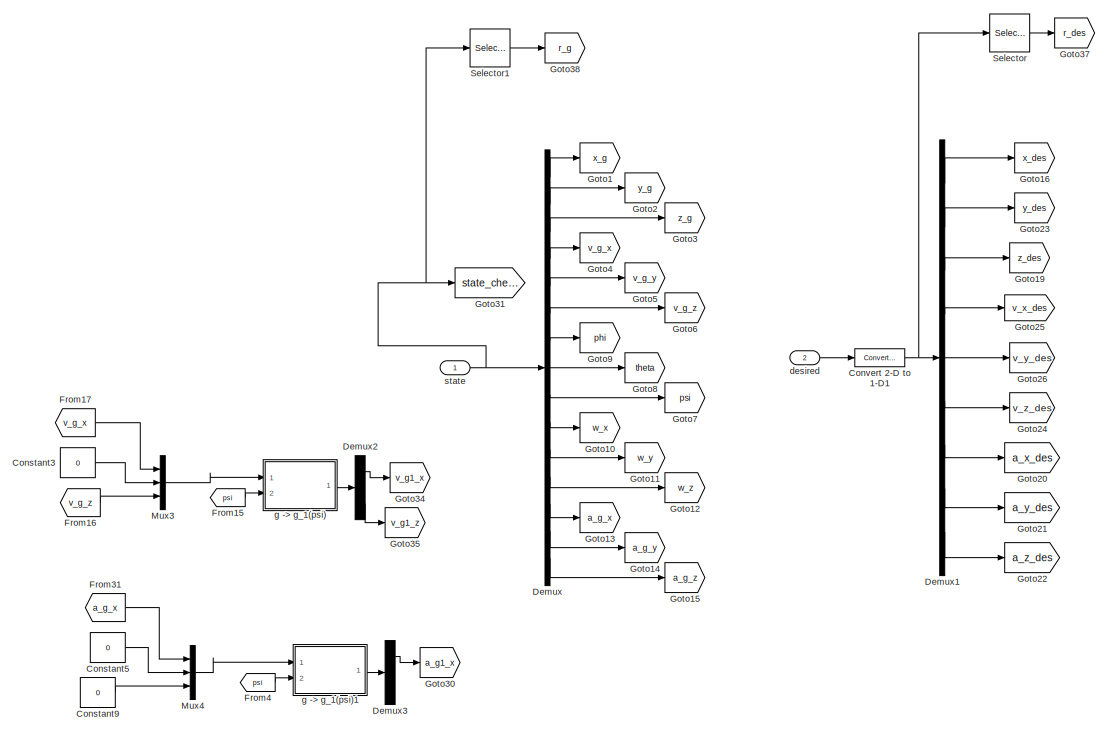
[diagram: root canvas - part 1/8, top left region]
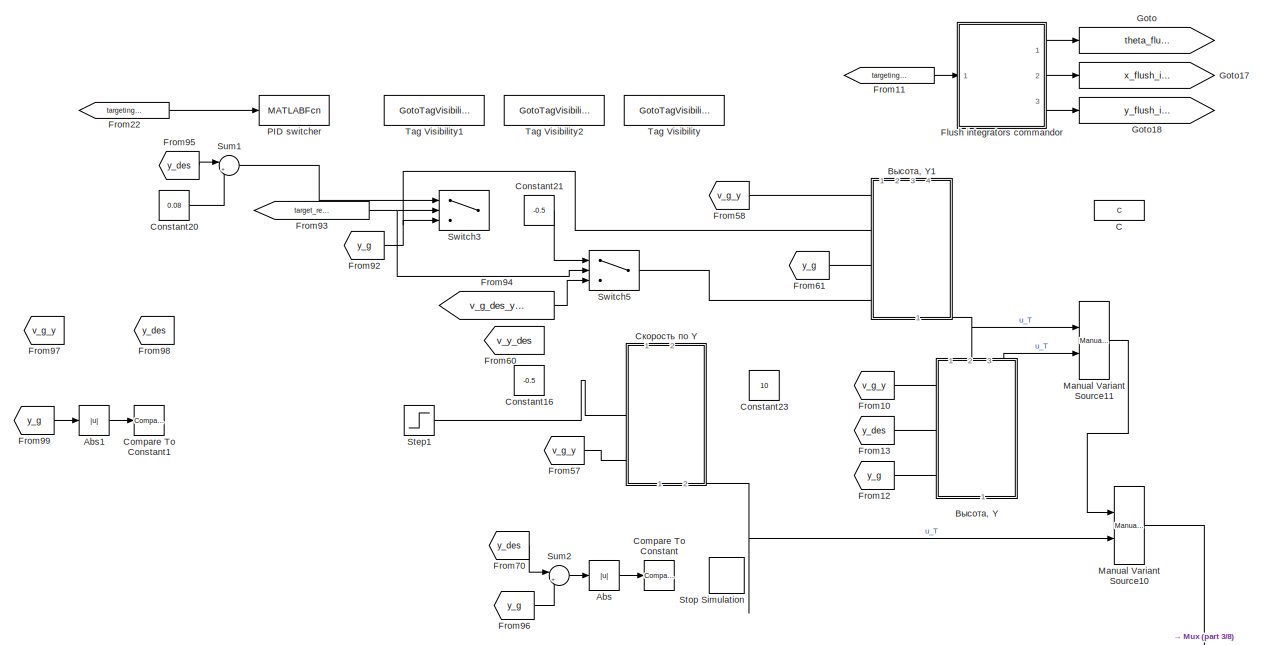
[diagram: root canvas - part 2/8, top center region]
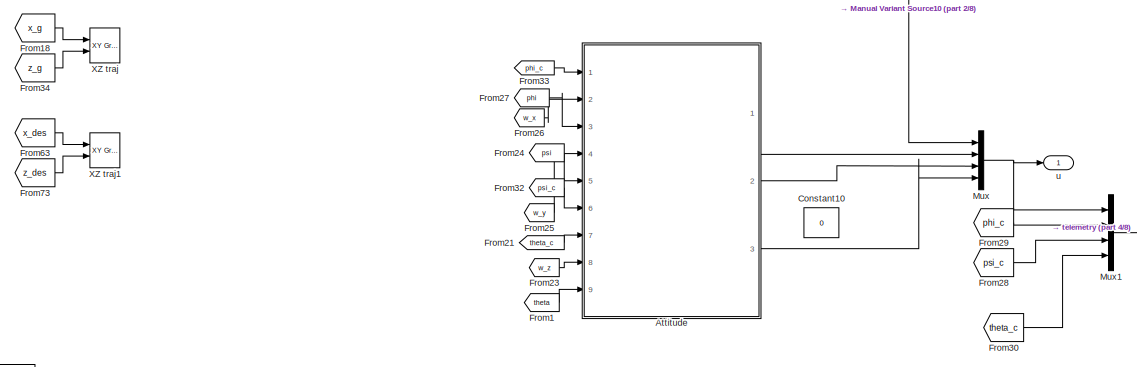
[diagram: root canvas - part 3/8, top center region]
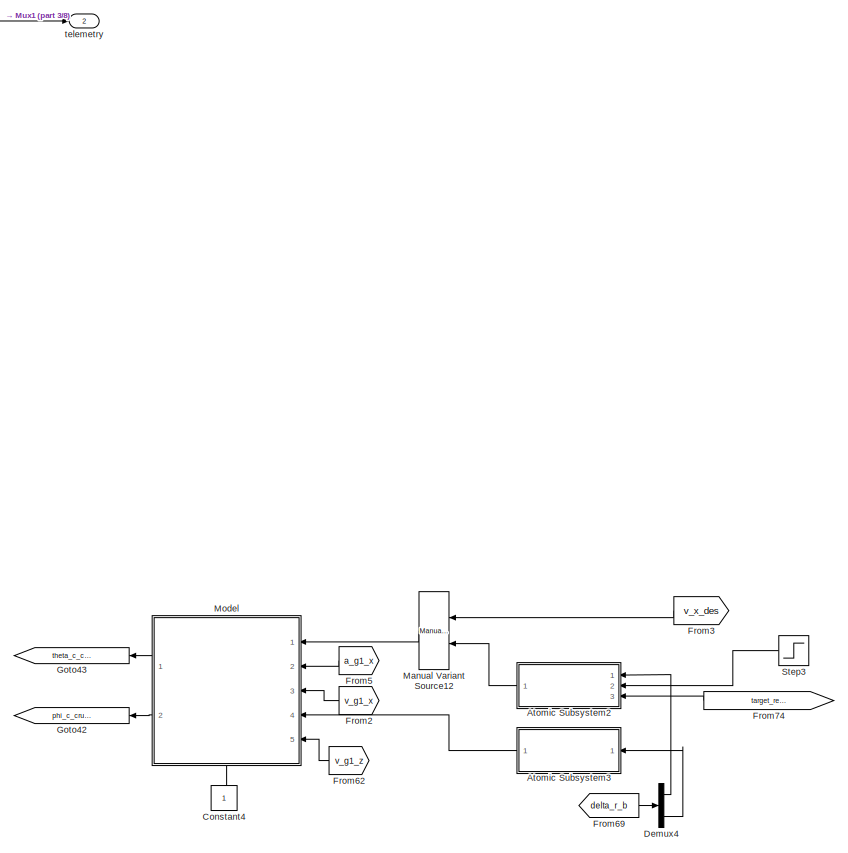
[diagram: root canvas - part 4/8, middle right region]
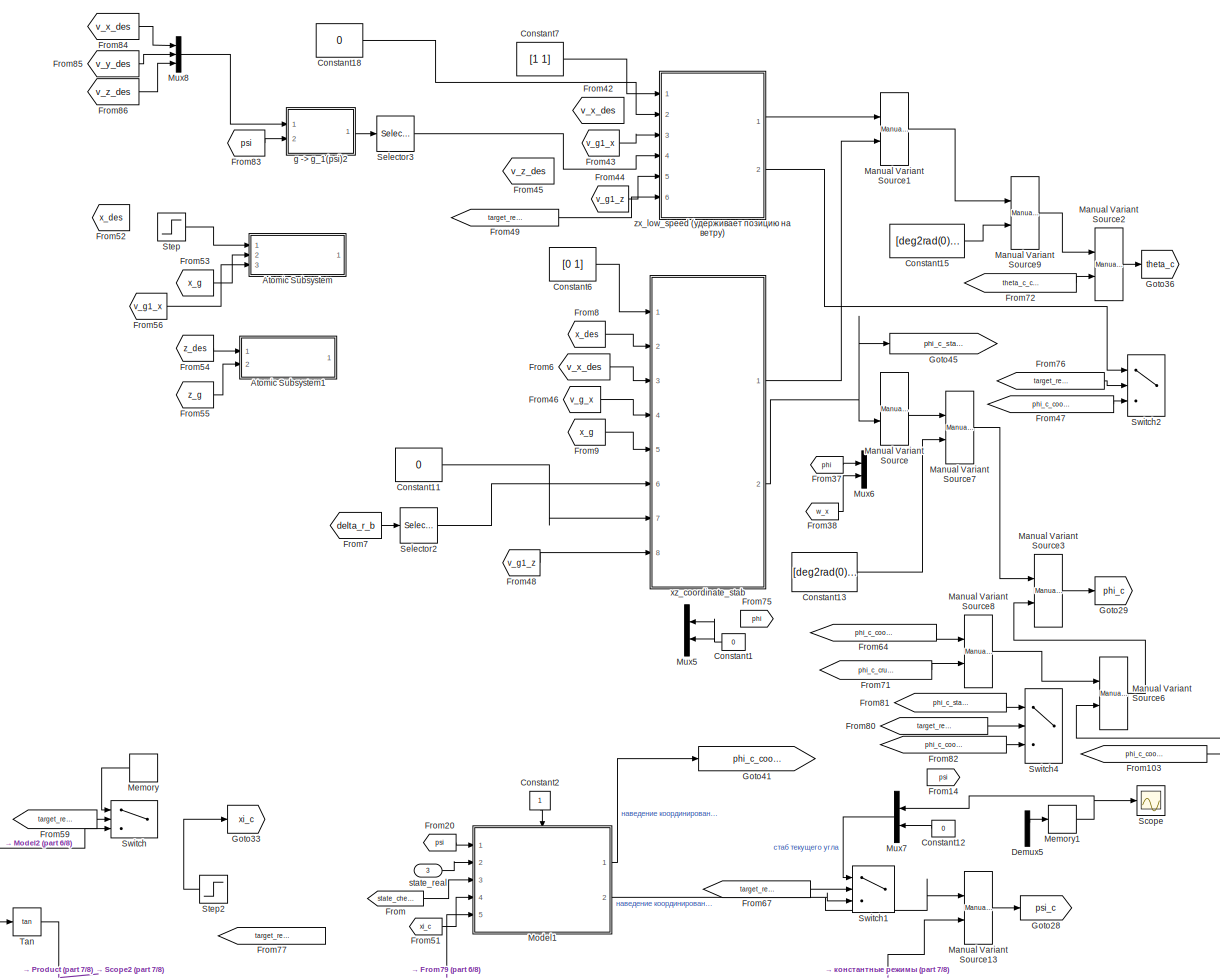
[diagram: root canvas - part 5/8, central region]
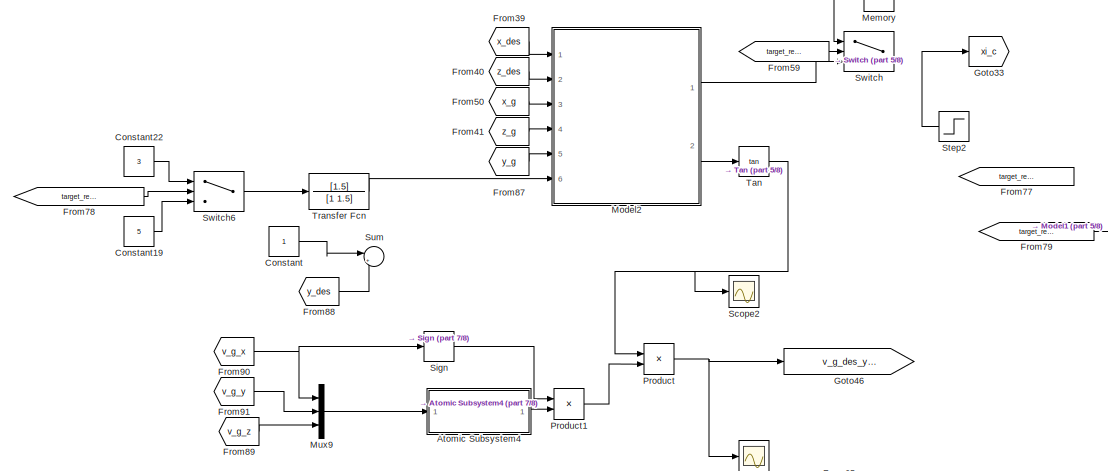
[diagram: root canvas - part 6/8, bottom left region]
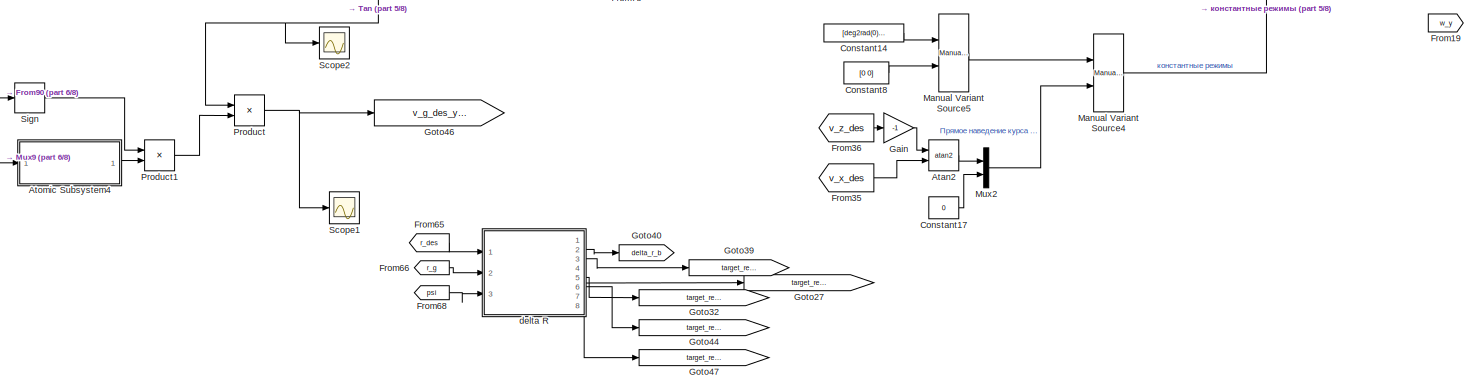
[diagram: root canvas - part 7/8, bottom center region]
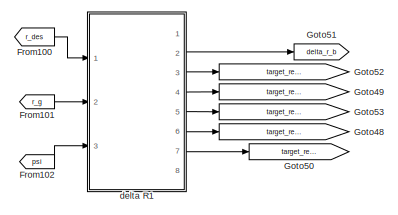
[diagram: root canvas - part 8/8, bottom center region]
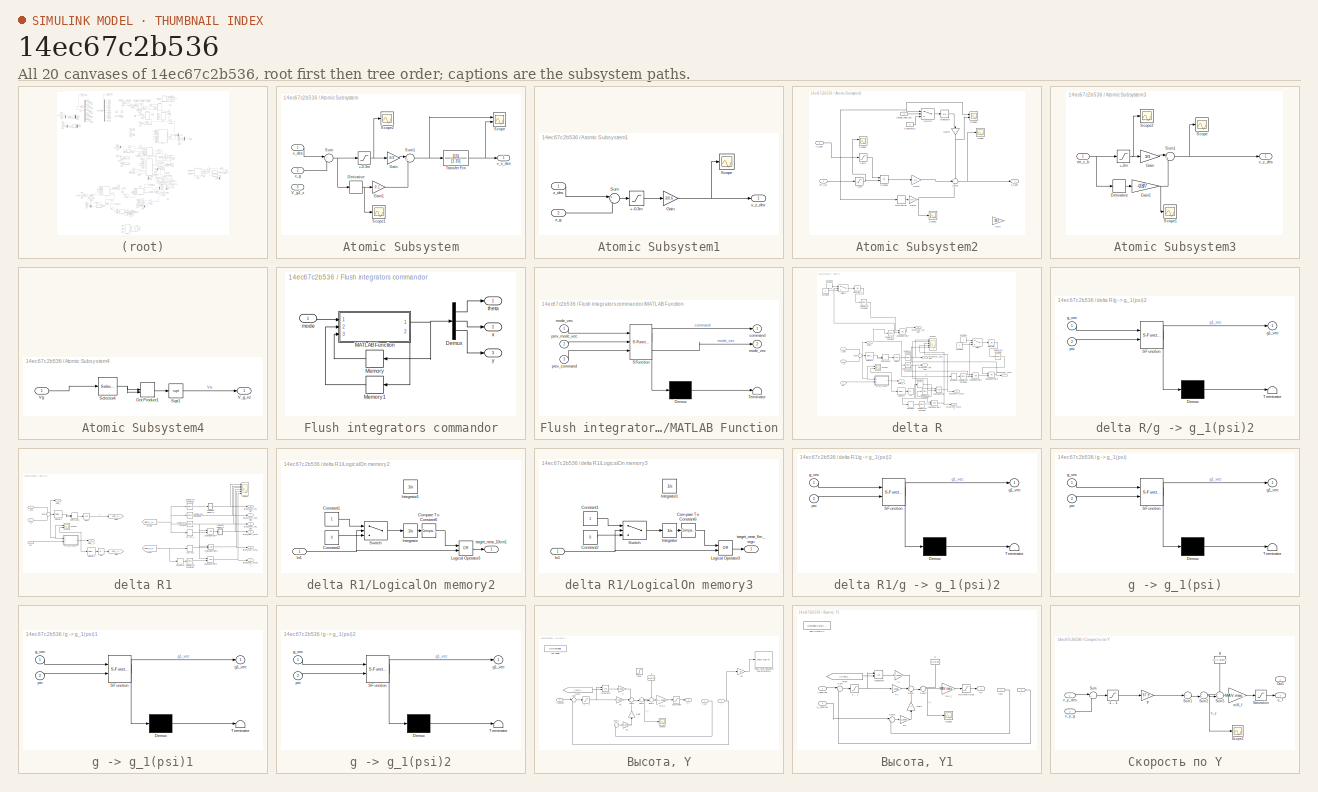
[diagram: thumbnail index - all 20 canvases of the model, root first then tree order]
MODEL slx_14ec67c2b536
KIND model
CONFIG AbsTol = auto
CONFIG EnableMultiTasking = off
CONFIG FixedStep = auto
CONFIG MaxStep = auto
CONFIG MinStep = auto
CONFIG RelTol = 1e-3
CONFIG SampleTimeConstraint = Unconstrained
CONFIG Solver = VariableStepAuto
CONFIG SolverName = VariableStepAuto
CONFIG StartTime = 0.0
CONFIG StopTime = 10.0
WORKSPACE source: mxarray member
WORKSPACE D1_podbor1 = 902.0676
WORKSPACE D1_podbor_psi = 334.133298018
WORKSPACE D1_podbor_y = 97.9069
WORKSPACE D_podbor_x = 10
WORKSPACE D_podbor_z = 10
WORKSPACE I1_podbor1 = 320.9285
WORKSPACE I1_podbor_psi = 2.71828630961
WORKSPACE I1_podbor_y = 0.6752
WORKSPACE I_podbor_x = 50
WORKSPACE I_podbor_z = 50
WORKSPACE P1_podbor1 = 7509.4
WORKSPACE P1_podbor_psi = 848.547345881
WORKSPACE P1_podbor_y = 264.9363
WORKSPACE P_podbor_x = 50
WORKSPACE P_podbor_z = 50
WORKSPACE theta_1_P_param: Simulink.Parameter (value not decoded)
WORKSPACE theta_1_P_paramCopy: Simulink.Parameter (value not decoded)
BLOCK [Abs] Abs
  SaturateOnIntegerOverflow = off
BLOCK [Abs] Abs1
  SaturateOnIntegerOverflow = off
BLOCK [Trigonometry] Atan2
  Operator = atan2
  Ports = [2, 1]
BLOCK [SubSystem] Atomic Subsystem
  Commented = on
  Ports = [3, 1]
  RequestExecContextInheritance = off
  TreatAsAtomicUnit = on
BLOCK [Saturate] Atomic Subsystem/+-0.3m
  LowerLimit = -3
  UpperLimit = 3
BLOCK [Derivative] Atomic Subsystem/Derivative
BLOCK [Gain] Atomic Subsystem/Gain
  Gain = 6/3
BLOCK [Gain] Atomic Subsystem/Gain1
  Gain = 0.1
BLOCK [Scope] Atomic Subsystem/Scope
  Floating = off
  NumInputPorts = 2
  Ports = [2]
  ScopeSpecificationString = Simulink.scopes.TimeScopeBlockCfg('CurrentConfiguration', extmgr.ConfigurationSet(extmgr.Configuration('Core','General UI',true),extmgr.Configuration('Core','Source UI',true),extmgr.Configuration('Sources','WiredSimulink',true,'DataLoggingVariableName','ScopeData1'),extmgr.Configuration('Visuals','Time Domain',true,'SerializedDisplays',{struct('MinYLimReal','2.25827','MaxYLimReal','4.8252','YLabel...<+1403ch>
BLOCK [Scope] Atomic Subsystem/Scope1
  Floating = off
  NumInputPorts = 1
  Ports = [1]
  ScopeSpecificationString = Simulink.scopes.TimeScopeBlockCfg('CurrentConfiguration', extmgr.ConfigurationSet(extmgr.Configuration('Core','General UI',true),extmgr.Configuration('Core','Source UI',true),extmgr.Configuration('Sources','WiredSimulink',true,'DataLoggingVariableName','ScopeData1'),extmgr.Configuration('Visuals','Time Domain',true,'SerializedDisplays',{struct('MinYLimReal','-0.03107','MaxYLimReal','0.04148','YLab...<+1419ch>
BLOCK [Scope] Atomic Subsystem/Scope2
  Floating = off
  NumInputPorts = 1
  Ports = [1]
  ScopeSpecificationString = Simulink.scopes.TimeScopeBlockCfg('CurrentConfiguration', extmgr.ConfigurationSet(extmgr.Configuration('Core','General UI',true),extmgr.Configuration('Core','Source UI',true),extmgr.Configuration('Sources','WiredSimulink',true,'DataLoggingVariableName','ScopeData2'),extmgr.Configuration('Visuals','Time Domain',true,'SerializedDisplays',{struct('MinYLimReal','0.5','MaxYLimReal','0.7','YLabelReal','...<+1362ch>
BLOCK [Sum] Atomic Subsystem/Sum
  Inputs = +-
  Ports = [2, 1]
BLOCK [Sum] Atomic Subsystem/Sum1
  Inputs = |+-
  Ports = [2, 1]
BLOCK [TransferFcn] Atomic Subsystem/Transfer Fcn
  Denominator = [1 15]
  Numerator = [15]
BLOCK [Inport] Atomic Subsystem/V_g1_x
  Port = 3
BLOCK [Outport] Atomic Subsystem/v_x_des
BLOCK [Inport] Atomic Subsystem/x_des
BLOCK [Inport] Atomic Subsystem/x_g
  Port = 2
BLOCK [SubSystem] Atomic Subsystem1
  Commented = on
  Ports = [2, 1]
  RequestExecContextInheritance = off
  TreatAsAtomicUnit = on
BLOCK [Saturate] Atomic Subsystem1/+-0.3m
  LowerLimit = -0.6
  UpperLimit = 0.6
BLOCK [Gain] Atomic Subsystem1/Gain
  Gain = 3/0.6
BLOCK [Scope] Atomic Subsystem1/Scope
  Floating = off
  NumInputPorts = 1
  Ports = [1]
  ScopeSpecificationString = Simulink.scopes.TimeScopeBlockCfg('CurrentConfiguration', extmgr.ConfigurationSet(extmgr.Configuration('Core','General UI',true),extmgr.Configuration('Core','Source UI',true),extmgr.Configuration('Sources','WiredSimulink',true,'DataLoggingVariableName','ScopeData1'),extmgr.Configuration('Visuals','Time Domain',true),extmgr.Configuration('Tools','Plot Navigation',true),extmgr.Configuration('Tools',...<+40ch>
BLOCK [Sum] Atomic Subsystem1/Sum
  Inputs = +-
  Ports = [2, 1]
BLOCK [Outport] Atomic Subsystem1/v_z_des
BLOCK [Inport] Atomic Subsystem1/z_des
BLOCK [Inport] Atomic Subsystem1/z_g
  Port = 2
BLOCK [SubSystem] Atomic Subsystem2
  NameLocation = top
  Ports = [3, 1]
  RequestExecContextInheritance = off
  TreatAsAtomicUnit = on
BLOCK [Saturate] Atomic Subsystem2/+-5m
  LowerLimit = -5
  UpperLimit = 5
BLOCK [Saturate] Atomic Subsystem2/+-5m1
  Commented = through
  LowerLimit = -20
  UpperLimit = 20
BLOCK [Constant] Atomic Subsystem2/Constant12
  Value = 0
BLOCK [Derivative] Atomic Subsystem2/Derivative
BLOCK [Gain] Atomic Subsystem2/Gain
  Gain = 10/3
BLOCK [Gain] Atomic Subsystem2/Gain1
  Gain = -0.8/1.5
BLOCK [Gain] Atomic Subsystem2/Gain2
  Gain = 1/5
BLOCK [Gain] Atomic Subsystem2/Gain3
  Gain = 1.7
  NameLocation = left
BLOCK [Integrator] Atomic Subsystem2/Integrator
  Ports = [1, 1]
BLOCK [Product] Atomic Subsystem2/Product
  Ports = [2, 1]
BLOCK [Scope] Atomic Subsystem2/Scope
  Floating = off
  NumInputPorts = 1
  Ports = [1]
  ScopeSpecificationString = Simulink.scopes.TimeScopeBlockCfg('CurrentConfiguration', extmgr.ConfigurationSet(extmgr.Configuration('Core','General UI',true),extmgr.Configuration('Core','Source UI',true),extmgr.Configuration('Sources','WiredSimulink',true,'DataLoggingVariableName','ScopeData1'),extmgr.Configuration('Visuals','Time Domain',true,'SerializedDisplays',{struct('MinYLimReal','-8.50422','MaxYLimReal','76.88323','YLa...<+1438ch>
BLOCK [Scope] Atomic Subsystem2/Scope1
  Floating = off
  NumInputPorts = 1
  Ports = [1]
  ScopeSpecificationString = Simulink.scopes.TimeScopeBlockCfg('CurrentConfiguration', extmgr.ConfigurationSet(extmgr.Configuration('Core','General UI',true),extmgr.Configuration('Core','Source UI',true),extmgr.Configuration('Sources','WiredSimulink',true,'DataLoggingVariableName','ScopeData1'),extmgr.Configuration('Visuals','Time Domain',true,'SerializedDisplays',{struct('MinYLimReal','-28.89717','MaxYLimReal','20.63702','YL...<+1443ch>
BLOCK [Scope] Atomic Subsystem2/Scope2
  Floating = off
  NumInputPorts = 2
  Ports = [2]
  ScopeSpecificationString = Simulink.scopes.TimeScopeBlockCfg('CurrentConfiguration', extmgr.ConfigurationSet(extmgr.Configuration('Core','General UI',true),extmgr.Configuration('Core','Source UI',true),extmgr.Configuration('Sources','WiredSimulink',true,'DataLoggingVariableName','ScopeData3'),extmgr.Configuration('Visuals','Time Domain',true,'SerializedDisplays',{struct('MinYLimReal','-6.79102','MaxYLimReal','0.75456','YLab...<+1468ch>
BLOCK [Scope] Atomic Subsystem2/Scope4
  Floating = off
  NumInputPorts = 2
  Ports = [2]
  ScopeSpecificationString = Simulink.scopes.TimeScopeBlockCfg('CurrentConfiguration', extmgr.ConfigurationSet(extmgr.Configuration('Core','General UI',true),extmgr.Configuration('Core','Source UI',true),extmgr.Configuration('Sources','WiredSimulink',true,'DataLoggingVariableName','ScopeData4'),extmgr.Configuration('Visuals','Time Domain',true,'SerializedDisplays',{struct('MinYLimReal','-0.01247','MaxYLimReal','0.11221','YLab...<+1444ch>
BLOCK [Sum] Atomic Subsystem2/Sum1
  Inputs = ++-
  Ports = [3, 1]
BLOCK [Switch] Atomic Subsystem2/Switch
  Criteria = u2 > Threshold
  InputSameDT = off
  SaturateOnIntegerOverflow = off
BLOCK [Inport] Atomic Subsystem2/Vx_des
  Port = 2
BLOCK [Inport] Atomic Subsystem2/err_x_b
BLOCK [Inport] Atomic Subsystem2/target_near_3m
  Port = 3
BLOCK [Outport] Atomic Subsystem2/v_x_des
BLOCK [SubSystem] Atomic Subsystem3
  NameLocation = top
  Ports = [1, 1]
  RequestExecContextInheritance = off
  TreatAsAtomicUnit = on
BLOCK [Saturate] Atomic Subsystem3/+-3m
  LowerLimit = -3
  UpperLimit = 3
BLOCK [Derivative] Atomic Subsystem3/Derivative
BLOCK [Gain] Atomic Subsystem3/Gain
  Gain = 3/3
BLOCK [Gain] Atomic Subsystem3/Gain1
  Gain = -0.8/7
BLOCK [Scope] Atomic Subsystem3/Scope
  Floating = off
  NumInputPorts = 1
  Ports = [1]
  ScopeSpecificationString = Simulink.scopes.TimeScopeBlockCfg('CurrentConfiguration', extmgr.ConfigurationSet(extmgr.Configuration('Core','General UI',true),extmgr.Configuration('Core','Source UI',true),extmgr.Configuration('Sources','WiredSimulink',true,'DataLoggingVariableName','ScopeData1'),extmgr.Configuration('Visuals','Time Domain',true,'SerializedDisplays',{struct('MinYLimReal','-0.36455','MaxYLimReal','0.63358','YLab...<+1412ch>
BLOCK [Scope] Atomic Subsystem3/Scope1
  Floating = off
  NumInputPorts = 1
  Ports = [1]
  ScopeSpecificationString = Simulink.scopes.TimeScopeBlockCfg('CurrentConfiguration', extmgr.ConfigurationSet(extmgr.Configuration('Core','General UI',true),extmgr.Configuration('Core','Source UI',true),extmgr.Configuration('Sources','WiredSimulink',true,'DataLoggingVariableName','ScopeData1'),extmgr.Configuration('Visuals','Time Domain',true,'SerializedDisplays',{struct('MinYLimReal','-0.0000000000000000000000002','MaxYLimR...<+1580ch>
BLOCK [Scope] Atomic Subsystem3/Scope2
  Floating = off
  NumInputPorts = 1
  Ports = [1]
  ScopeSpecificationString = Simulink.scopes.TimeScopeBlockCfg('CurrentConfiguration', extmgr.ConfigurationSet(extmgr.Configuration('Core','General UI',true),extmgr.Configuration('Core','Source UI',true),extmgr.Configuration('Sources','WiredSimulink',true,'DataLoggingVariableName','ScopeData2'),extmgr.Configuration('Visuals','Time Domain',true,'SerializedDisplays',{struct('MinYLimReal','-0.97627','MaxYLimReal','3.44181','YLab...<+1393ch>
BLOCK [Sum] Atomic Subsystem3/Sum1
  Inputs = |+-
  Ports = [2, 1]
BLOCK [Inport] Atomic Subsystem3/err_z_b
BLOCK [Outport] Atomic Subsystem3/v_z_des
BLOCK [SubSystem] Atomic Subsystem4
  Ports = [1, 1]
  RequestExecContextInheritance = off
  TreatAsAtomicUnit = on
BLOCK [DotProduct] Atomic Subsystem4/Dot Product1
  OutDataTypeStr = Inherit: Inherit via internal rule
BLOCK [Selector] Atomic Subsystem4/Selector4
  IndexOptions = Index vector (dialog)
  Indices = [1 3]
  InputPortWidth = 3
  OutputSizes = 1
  Ports = [1, 1]
BLOCK [Sqrt] Atomic Subsystem4/Sqrt1
BLOCK [Outport] Atomic Subsystem4/V_g_xz
BLOCK [Inport] Atomic Subsystem4/Vg
BLOCK [ModelReference] Attitude
  ModelNameDialog = attitude_control.slx
  ModelReferenceVersion = 1.4
  PortSchema = {"entries":[{"content":{"sides":[{"content":{"connectorIds":["In1","In3","In2","In5","In6","In4","In7","In8","In9"]},"type":"ConnectorPlacement.EquallySpacedRectSide","uuid":"dbfcd847-4d65-4f0c-929f-179268b7fffa"},{"content":{"connectorIds":["Out1","Out2","Out3"],"side":"RIGHT"},"type":"ConnectorPlacement.EquallySpacedRectSide","uuid":"137158cb-e778-43b1-aea9-7a9702fa9882"},{"content":{"connectorI...<+304ch>
  Ports = [9, 3]
BLOCK [Reference] C  REF=simrfV2elements/C
  Ports = [0, 0, 0, 0, 0, 1, 1]
  SourceBlock = simrfV2elements/C
  SourceProductBaseCode = RB
  SourceType = Capacitor
BLOCK [Reference] Compare To Constant  REF=simulink/Logic and Bit
Operations/Compare
To Constant
  Ports = [1, 1]
  SourceBlock = simulink/Logic and Bit\nOperations/Compare\nTo Constant
  SourceProductBaseCode = SL
  SourceType = Compare To Constant
BLOCK [Reference] Compare To Constant1  REF=simulink/Logic and Bit
Operations/Compare
To Constant
  Ports = [1, 1]
  SourceBlock = simulink/Logic and Bit\nOperations/Compare\nTo Constant
  SourceProductBaseCode = SL
  SourceType = Compare To Constant
BLOCK [Constant] Constant
BLOCK [Constant] Constant1
  NameLocation = top
  Value = 0
BLOCK [Constant] Constant10
  Value = 0
BLOCK [Constant] Constant11
  Value = 0
BLOCK [Constant] Constant12
  NameLocation = top
  Value = 0
BLOCK [Constant] Constant13
  Value = [deg2rad(0) 0]
BLOCK [Constant] Constant14
  Value = [deg2rad(0); 0]
BLOCK [Constant] Constant15
  Value = [deg2rad(0) 0]
BLOCK [Constant] Constant16
  Value = -0.5
BLOCK [Constant] Constant17
  Value = 0
BLOCK [Constant] Constant18
  Value = 0
BLOCK [Constant] Constant19
  Value = 5
BLOCK [Constant] Constant2
  NameLocation = left
BLOCK [Constant] Constant20
  Value = 0.08
BLOCK [Constant] Constant21
  Value = -0.5
BLOCK [Constant] Constant22
  Value = 3
BLOCK [Constant] Constant23
  Value = 10
BLOCK [Constant] Constant3
  Value = 0
BLOCK [Constant] Constant4
  NameLocation = right
BLOCK [Constant] Constant5
  Value = 0
BLOCK [Constant] Constant6
  Value = [0 1]
BLOCK [Constant] Constant7
  Value = [1 1]
BLOCK [Constant] Constant8
  Value = [0 0]
BLOCK [Constant] Constant9
  Value = 0
BLOCK [Reference] Convert 2-D to 1-D1  REF=dspsigattribs/Convert 2-D to 1-D
  Ports = [1, 1]
  SourceBlock = dspsigattribs/Convert 2-D to 1-D
  SourceProductBaseCode = DS
  SourceType = Convert 2-D to 1-D
BLOCK [Demux] Demux
  Outputs = 15
  Ports = [1, 15]
BLOCK [Demux] Demux1
  Outputs = 9
  Ports = [1, 9]
BLOCK [Demux] Demux2
  Outputs = 3
  Ports = [1, 3]
BLOCK [Demux] Demux3
  Outputs = 3
  Ports = [1, 3]
BLOCK [Demux] Demux4
  Outputs = 3
  Ports = [1, 3]
BLOCK [Demux] Demux5
  Outputs = 2
  Ports = [1, 2]
BLOCK [SubSystem] Flush integrators commandor
  Commented = on
  Ports = [1, 3]
  RequestExecContextInheritance = off
BLOCK [Demux] Flush integrators commandor/Demux
  Outputs = 3
  Ports = [1, 3]
BLOCK [SubSystem] Flush integrators commandor/MATLAB Function
  ErrorFcn = Stateflow.Translate.translate
  PermitHierarchicalResolution = ExplicitOnly
  Ports = [3, 2]
  RequestExecContextInheritance = off
  SFBlockType = MATLAB Function
  TreatAsAtomicUnit = on
BLOCK [Demux] Flush integrators commandor/MATLAB Function/ Demux 
  Outputs = 1
  Ports = [1, 1]
BLOCK [S-Function] Flush integrators commandor/MATLAB Function/ SFunction 
  EnableBusSupport = on
  FunctionName = sf_sfun
  PortCounts = [3 3]
  Ports = [3, 3]
  SFcnIsStateOwnerBlock = off
  SFunctionDeploymentMode = off
  Tag = Stateflow S-Function 22
BLOCK [Terminator] Flush integrators commandor/MATLAB Function/ Terminator 
BLOCK [Outport] Flush integrators commandor/MATLAB Function/command
BLOCK [Outport] Flush integrators commandor/MATLAB Function/mode_vec
  Port = 2
BLOCK [Inport] Flush integrators commandor/MATLAB Function/mode_vec 
BLOCK [Inport] Flush integrators commandor/MATLAB Function/prev_command
  Port = 3
BLOCK [Inport] Flush integrators commandor/MATLAB Function/prev_mode_vec
  Port = 2
BLOCK [Memory] Flush integrators commandor/Memory
  InitialCondition = [0 0 0]'
BLOCK [Memory] Flush integrators commandor/Memory1
  InitialCondition = [0 0]'
BLOCK [Inport] Flush integrators commandor/mode
BLOCK [Outport] Flush integrators commandor/theta
BLOCK [Outport] Flush integrators commandor/x
  Port = 2
BLOCK [Outport] Flush integrators commandor/y
  Port = 3
BLOCK [From] From
  GotoTag = state_cheat
BLOCK [From] From1
  GotoTag = theta
BLOCK [From] From10
  GotoTag = v_g_y
BLOCK [From] From100
  GotoTag = r_des
BLOCK [From] From101
  GotoTag = r_g
BLOCK [From] From102
  GotoTag = psi
BLOCK [From] From103
  GotoTag = phi_c_coordinated_turn
BLOCK [From] From11
  Commented = on
  GotoTag = targeting_mode
  TagVisibility = global
BLOCK [From] From12
  GotoTag = y_g
BLOCK [From] From13
  GotoTag = y_des
BLOCK [From] From14
  GotoTag = psi
  NameLocation = top
BLOCK [From] From15
  GotoTag = psi
BLOCK [From] From16
  GotoTag = v_g_z
BLOCK [From] From17
  GotoTag = v_g_x
BLOCK [From] From18
  GotoTag = x_g
BLOCK [From] From19
  Commented = on
  GotoTag = w_y
  NameLocation = top
BLOCK [From] From2
  GotoTag = v_g1_x
  NameLocation = top
BLOCK [From] From20
  GotoTag = psi
BLOCK [From] From21
  GotoTag = theta_c
BLOCK [From] From22
  Commented = on
  GotoTag = targeting_mode
  TagVisibility = global
BLOCK [From] From23
  GotoTag = w_z
BLOCK [From] From24
  GotoTag = psi
BLOCK [From] From25
  GotoTag = w_y
BLOCK [From] From26
  GotoTag = w_x
BLOCK [From] From27
  GotoTag = phi
BLOCK [From] From28
  GotoTag = psi_c
BLOCK [From] From29
  GotoTag = phi_c
BLOCK [From] From3
  GotoTag = v_x_des
  NameLocation = top
BLOCK [From] From30
  GotoTag = theta_c
BLOCK [From] From31
  GotoTag = a_g_x
BLOCK [From] From32
  GotoTag = psi_c
BLOCK [From] From33
  GotoTag = phi_c
BLOCK [From] From34
  GotoTag = z_g
BLOCK [From] From35
  GotoTag = v_x_des
BLOCK [From] From36
  GotoTag = v_z_des
BLOCK [From] From37
  GotoTag = phi
BLOCK [From] From38
  GotoTag = w_x
BLOCK [From] From39
  GotoTag = x_des
BLOCK [From] From4
  GotoTag = psi
BLOCK [From] From40
  GotoTag = z_des
BLOCK [From] From41
  GotoTag = z_g
BLOCK [From] From42
  GotoTag = v_x_des
BLOCK [From] From43
  GotoTag = v_g1_x
BLOCK [From] From44
  GotoTag = v_g1_z
BLOCK [From] From45
  GotoTag = v_z_des
BLOCK [From] From46
  GotoTag = v_g_x
BLOCK [From] From47
  GotoTag = phi_c_coordinated_turn
BLOCK [From] From48
  GotoTag = v_g1_z
BLOCK [From] From49
  GotoTag = target_reached_5cm_z
BLOCK [From] From5
  GotoTag = a_g1_x
  NameLocation = top
BLOCK [From] From50
  GotoTag = x_g
BLOCK [From] From51
  GotoTag = xi_c
BLOCK [From] From52
  Commented = on
  GotoTag = x_des
BLOCK [From] From53
  Commented = on
  GotoTag = x_g
BLOCK [From] From54
  Commented = on
  GotoTag = z_des
BLOCK [From] From55
  Commented = on
  GotoTag = z_g
BLOCK [From] From56
  Commented = on
  GotoTag = v_g1_x
BLOCK [From] From57
  GotoTag = v_g_y
BLOCK [From] From58
  GotoTag = v_g_y
BLOCK [From] From59
  GotoTag = target_reached_1
BLOCK [From] From6
  GotoTag = v_x_des
BLOCK [From] From60
  GotoTag = v_y_des
BLOCK [From] From61
  GotoTag = y_g
BLOCK [From] From62
  GotoTag = v_g1_z
  NameLocation = top
BLOCK [From] From63
  GotoTag = x_des
BLOCK [From] From64
  GotoTag = phi_c_coordinated_turn
BLOCK [From] From65
  Commented = on
  GotoTag = r_des
BLOCK [From] From66
  Commented = on
  GotoTag = r_g
BLOCK [From] From67
  GotoTag = target_reached_50cm_z
BLOCK [From] From68
  Commented = on
  GotoTag = psi
BLOCK [From] From69
  GotoTag = delta_r_b
BLOCK [From] From7
  GotoTag = delta_r_b
BLOCK [From] From70
  GotoTag = y_des
BLOCK [From] From71
  GotoTag = phi_c_cruise_control
BLOCK [From] From72
  GotoTag = theta_c_cruise_control
BLOCK [From] From73
  GotoTag = z_des
BLOCK [From] From74
  GotoTag = target_reached_level_1
  NameLocation = top
BLOCK [From] From75
  GotoTag = phi
  NameLocation = top
BLOCK [From] From76
  GotoTag = target_reached_5cm_z
BLOCK [From] From77
  GotoTag = target_reached_1
BLOCK [From] From78
  GotoTag = target_reached_level_1
BLOCK [From] From79
  GotoTag = target_reached_level_1
BLOCK [From] From8
  GotoTag = x_des
BLOCK [From] From80
  GotoTag = target_reached_50cm_z
BLOCK [From] From81
  GotoTag = phi_c_stab_z_shitly
BLOCK [From] From82
  GotoTag = phi_c_coordinated_turn
BLOCK [From] From83
  GotoTag = psi
BLOCK [From] From84
  GotoTag = v_x_des
BLOCK [From] From85
  GotoTag = v_y_des
BLOCK [From] From86
  GotoTag = v_z_des
BLOCK [From] From87
  GotoTag = y_g
BLOCK [From] From88
  GotoTag = y_des
BLOCK [From] From89
  GotoTag = v_g_z
BLOCK [From] From9
  GotoTag = x_g
BLOCK [From] From90
  GotoTag = v_g_x
BLOCK [From] From91
  GotoTag = v_g_y
BLOCK [From] From92
  GotoTag = y_g
BLOCK [From] From93
  GotoTag = target_reached_10cm
BLOCK [From] From94
  GotoTag = v_g_des_y_targeting
BLOCK [From] From95
  GotoTag = y_des
BLOCK [From] From96
  GotoTag = y_g
BLOCK [From] From97
  GotoTag = v_g_y
BLOCK [From] From98
  GotoTag = y_des
BLOCK [From] From99
  GotoTag = y_g
BLOCK [Gain] Gain
  Gain = -1
BLOCK [Goto] Goto
  Commented = on
  GotoTag = theta_flush_integrator
  TagVisibility = scoped
BLOCK [Goto] Goto1
  GotoTag = x_g
BLOCK [Goto] Goto10
  GotoTag = w_x
BLOCK [Goto] Goto11
  GotoTag = w_y
BLOCK [Goto] Goto12
  GotoTag = w_z
BLOCK [Goto] Goto13
  GotoTag = a_g_x
BLOCK [Goto] Goto14
  GotoTag = a_g_y
BLOCK [Goto] Goto15
  GotoTag = a_g_z
BLOCK [Goto] Goto16
  GotoTag = x_des
BLOCK [Goto] Goto17
  Commented = on
  GotoTag = x_flush_integrator
  TagVisibility = scoped
BLOCK [Goto] Goto18
  Commented = on
  GotoTag = y_flush_integrator
  TagVisibility = scoped
BLOCK [Goto] Goto19
  GotoTag = z_des
BLOCK [Goto] Goto2
  GotoTag = y_g
BLOCK [Goto] Goto20
  GotoTag = a_x_des
BLOCK [Goto] Goto21
  GotoTag = a_y_des
BLOCK [Goto] Goto22
  GotoTag = a_z_des
BLOCK [Goto] Goto23
  GotoTag = y_des
BLOCK [Goto] Goto24
  GotoTag = v_z_des
BLOCK [Goto] Goto25
  GotoTag = v_x_des
BLOCK [Goto] Goto26
  GotoTag = v_y_des
BLOCK [Goto] Goto27
  Commented = on
  GotoTag = target_reached_level_1
BLOCK [Goto] Goto28
  GotoTag = psi_c
BLOCK [Goto] Goto29
  GotoTag = phi_c
BLOCK [Goto] Goto3
  GotoTag = z_g
BLOCK [Goto] Goto30
  GotoTag = a_g1_x
BLOCK [Goto] Goto31
  GotoTag = state_cheat
BLOCK [Goto] Goto32
  Commented = on
  GotoTag = target_reached_5cm_z
BLOCK [Goto] Goto33
  GotoTag = xi_c
BLOCK [Goto] Goto34
  GotoTag = v_g1_x
BLOCK [Goto] Goto35
  GotoTag = v_g1_z
BLOCK [Goto] Goto36
  GotoTag = theta_c
BLOCK [Goto] Goto37
  GotoTag = r_des
BLOCK [Goto] Goto38
  GotoTag = r_g
BLOCK [Goto] Goto39
  Commented = on
  GotoTag = target_reached_1
BLOCK [Goto] Goto4
  GotoTag = v_g_x
BLOCK [Goto] Goto40
  Commented = on
  GotoTag = delta_r_b
BLOCK [Goto] Goto41
  GotoTag = phi_c_coordinated_turn
BLOCK [Goto] Goto42
  GotoTag = phi_c_cruise_control
  NameLocation = top
BLOCK [Goto] Goto43
  GotoTag = theta_c_cruise_control
  NameLocation = top
BLOCK [Goto] Goto44
  Commented = on
  GotoTag = target_reached_50cm_z
BLOCK [Goto] Goto45
  GotoTag = phi_c_stab_z_shitly
BLOCK [Goto] Goto46
  GotoTag = v_g_des_y_targeting
BLOCK [Goto] Goto47
  Commented = on
  GotoTag = target_reached_10cm
BLOCK [Goto] Goto48
  GotoTag = target_reached_level_1
BLOCK [Goto] Goto49
  GotoTag = target_reached_5cm_z
BLOCK [Goto] Goto5
  GotoTag = v_g_y
BLOCK [Goto] Goto50
  GotoTag = target_reached_1
BLOCK [Goto] Goto51
  GotoTag = delta_r_b
BLOCK [Goto] Goto52
  GotoTag = target_reached_50cm_z
BLOCK [Goto] Goto53
  GotoTag = target_reached_10cm
BLOCK [Goto] Goto6
  GotoTag = v_g_z
BLOCK [Goto] Goto7
  GotoTag = psi
BLOCK [Goto] Goto8
  GotoTag = theta
BLOCK [Goto] Goto9
  GotoTag = phi
BLOCK [Reference] Manual Variant Source  REF=simulink/Signal
Routing/Manual
Variant Source
  Ports = [2, 1]
  SourceBlock = simulink/Signal\nRouting/Manual\nVariant Source
  SourceProductBaseCode = SL
  SourceType = ManualVariantSource
BLOCK [Reference] Manual Variant Source1  REF=simulink/Signal
Routing/Manual
Variant Source
  Ports = [2, 1]
  SourceBlock = simulink/Signal\nRouting/Manual\nVariant Source
  SourceProductBaseCode = SL
  SourceType = ManualVariantSource
BLOCK [Reference] Manual Variant Source10  REF=simulink/Signal
Routing/Manual
Variant Source
  Ports = [2, 1]
  SourceBlock = simulink/Signal\nRouting/Manual\nVariant Source
  SourceProductBaseCode = SL
  SourceType = ManualVariantSource
BLOCK [Reference] Manual Variant Source11  REF=simulink/Signal
Routing/Manual
Variant Source
  Ports = [2, 1]
  SourceBlock = simulink/Signal\nRouting/Manual\nVariant Source
  SourceProductBaseCode = SL
  SourceType = ManualVariantSource
BLOCK [Reference] Manual Variant Source12  REF=simulink/Signal
Routing/Manual
Variant Source
  NameLocation = top
  Ports = [2, 1]
  SourceBlock = simulink/Signal\nRouting/Manual\nVariant Source
  SourceProductBaseCode = SL
  SourceType = ManualVariantSource
BLOCK [Reference] Manual Variant Source13  REF=simulink/Signal
Routing/Manual
Variant Source
  Ports = [2, 1]
  SourceBlock = simulink/Signal\nRouting/Manual\nVariant Source
  SourceProductBaseCode = SL
  SourceType = ManualVariantSource
BLOCK [Reference] Manual Variant Source2  REF=simulink/Signal
Routing/Manual
Variant Source
  Ports = [2, 1]
  SourceBlock = simulink/Signal\nRouting/Manual\nVariant Source
  SourceProductBaseCode = SL
  SourceType = ManualVariantSource
BLOCK [Reference] Manual Variant Source3  REF=simulink/Signal
Routing/Manual
Variant Source
  Ports = [2, 1]
  SourceBlock = simulink/Signal\nRouting/Manual\nVariant Source
  SourceProductBaseCode = SL
  SourceType = ManualVariantSource
BLOCK [Reference] Manual Variant Source4  REF=simulink/Signal
Routing/Manual
Variant Source
  Ports = [2, 1]
  SourceBlock = simulink/Signal\nRouting/Manual\nVariant Source
  SourceProductBaseCode = SL
  SourceType = ManualVariantSource
BLOCK [Reference] Manual Variant Source5  REF=simulink/Signal
Routing/Manual
Variant Source
  Ports = [2, 1]
  SourceBlock = simulink/Signal\nRouting/Manual\nVariant Source
  SourceProductBaseCode = SL
  SourceType = ManualVariantSource
BLOCK [Reference] Manual Variant Source6  REF=simulink/Signal
Routing/Manual
Variant Source
  Ports = [2, 1]
  SourceBlock = simulink/Signal\nRouting/Manual\nVariant Source
  SourceProductBaseCode = SL
  SourceType = ManualVariantSource
BLOCK [Reference] Manual Variant Source7  REF=simulink/Signal
Routing/Manual
Variant Source
  Ports = [2, 1]
  SourceBlock = simulink/Signal\nRouting/Manual\nVariant Source
  SourceProductBaseCode = SL
  SourceType = ManualVariantSource
BLOCK [Reference] Manual Variant Source8  REF=simulink/Signal
Routing/Manual
Variant Source
  Ports = [2, 1]
  SourceBlock = simulink/Signal\nRouting/Manual\nVariant Source
  SourceProductBaseCode = SL
  SourceType = ManualVariantSource
BLOCK [Reference] Manual Variant Source9  REF=simulink/Signal
Routing/Manual
Variant Source
  Ports = [2, 1]
  SourceBlock = simulink/Signal\nRouting/Manual\nVariant Source
  SourceProductBaseCode = SL
  SourceType = ManualVariantSource
BLOCK [Memory] Memory
  NameLocation = top
BLOCK [Memory] Memory1
BLOCK [ModelReference] Model
  EnablePortName = Enable
  EnablePortStatesWhenEnabling = held
  ModelNameDialog = v_cruise_control.slx
  ModelReferenceVersion = 1.43
  NameLocation = top
  Ports = [5, 2, 1]
BLOCK [ModelReference] Model1
  EnablePortName = Enable
  EnablePortStatesWhenEnabling = held
  ModelNameDialog = coordinated_turn_roll_v1.slx
  ModelReferenceVersion = 1.135
  Ports = [5, 2, 1]
BLOCK [ModelReference] Model2
  ModelNameDialog = targeting_speed_angles.slx
  ModelReferenceVersion = 1.18
  Ports = [6, 2]
BLOCK [Mux] Mux
  DisplayOption = bar
  Ports = [4, 1]
BLOCK [Mux] Mux1
  DisplayOption = bar
  Ports = [4, 1]
BLOCK [Mux] Mux2
  DisplayOption = bar
  Inputs = 2
  Ports = [2, 1]
BLOCK [Mux] Mux3
  DisplayOption = bar
  Inputs = 3
  Ports = [3, 1]
BLOCK [Mux] Mux4
  DisplayOption = bar
  Inputs = 3
  Ports = [3, 1]
BLOCK [Mux] Mux5
  DisplayOption = bar
  Inputs = 2
  NameLocation = top
  Ports = [2, 1]
BLOCK [Mux] Mux6
  DisplayOption = bar
  Inputs = 2
  Ports = [2, 1]
BLOCK [Mux] Mux7
  DisplayOption = bar
  Inputs = 2
  NameLocation = top
  Ports = [2, 1]
BLOCK [Mux] Mux8
  DisplayOption = bar
  Inputs = 3
  Ports = [3, 1]
BLOCK [Mux] Mux9
  DisplayOption = bar
  Inputs = 3
  Ports = [3, 1]
BLOCK [MATLABFcn] PID switcher
  Commented = on
  MATLABFcn = setup_pid(u)
  Output1D = off
  OutputDimensions = 0
  Ports = [1]
BLOCK [Product] Product
  Ports = [2, 1]
BLOCK [Product] Product1
  Ports = [2, 1]
BLOCK [Scope] Scope
  Floating = off
  NumInputPorts = 1
  Ports = [1]
  ScopeSpecificationString = Simulink.scopes.TimeScopeBlockCfg('CurrentConfiguration', extmgr.ConfigurationSet(extmgr.Configuration('Core','General UI',true),extmgr.Configuration('Core','Source UI',true),extmgr.Configuration('Sources','WiredSimulink',true,'DataLoggingVariableName','ScopeData1'),extmgr.Configuration('Visuals','Time Domain',true,'SerializedDisplays',{struct('MinYLimReal','-1.88771','MaxYLimReal','9.7195','YLabe...<+1437ch>
BLOCK [Scope] Scope1
  Floating = off
  NumInputPorts = 1
  Ports = [1]
  ScopeSpecificationString = Simulink.scopes.TimeScopeBlockCfg('CurrentConfiguration', extmgr.ConfigurationSet(extmgr.Configuration('Core','General UI',true),extmgr.Configuration('Core','Source UI',true),extmgr.Configuration('Sources','WiredSimulink',true,'DataLoggingVariableName','ScopeData1'),extmgr.Configuration('Visuals','Time Domain',true),extmgr.Configuration('Tools','Plot Navigation',true),extmgr.Configuration('Tools',...<+40ch>
BLOCK [Scope] Scope2
  Floating = off
  NumInputPorts = 1
  Ports = [1]
  ScopeSpecificationString = Simulink.scopes.TimeScopeBlockCfg('CurrentConfiguration', extmgr.ConfigurationSet(extmgr.Configuration('Core','General UI',true),extmgr.Configuration('Core','Source UI',true),extmgr.Configuration('Sources','WiredSimulink',true,'DataLoggingVariableName','ScopeData2'),extmgr.Configuration('Visuals','Time Domain',true,'SerializedDisplays',{struct('MinYLimReal','-843.25949','MaxYLimReal','1601.36491',...<+1409ch>
BLOCK [Selector] Selector
  IndexOptions = Index vector (dialog)
  Indices = [1:3]
  InputPortWidth = 9
  OutputSizes = 1
  Ports = [1, 1]
BLOCK [Selector] Selector1
  IndexOptions = Index vector (dialog)
  Indices = [1:3]
  InputPortWidth = 15
  OutputSizes = 1
  Ports = [1, 1]
BLOCK [Selector] Selector2
  IndexOptions = Index vector (dialog)
  Indices = [3]
  InputPortWidth = 3
  OutputSizes = 1
  Ports = [1, 1]
BLOCK [Selector] Selector3
  IndexOptions = Index vector (dialog)
  Indices = [3]
  InputPortWidth = 3
  OutputSizes = 1
  Ports = [1, 1]
BLOCK [Signum] Sign
BLOCK [Step] Step
  After = 5
  Commented = on
  SampleTime = 0
  Time = 0.2
BLOCK [Step] Step1
  After = 0
  Before = -1
  SampleTime = 0
  Time = 3
BLOCK [Step] Step2
  After = deg2rad(180)
  NameLocation = top
  SampleTime = 0
BLOCK [Step] Step3
  After = 20
  NameLocation = top
  SampleTime = 0
  Time = 0
BLOCK [Stop] Stop Simulation
BLOCK [Sum] Sum
  Inputs = |++
  Ports = [2, 1]
BLOCK [Sum] Sum1
  Inputs = |++
  Ports = [2, 1]
BLOCK [Sum] Sum2
  Inputs = |+-
  Ports = [2, 1]
BLOCK [Switch] Switch
  Criteria = u2 ~= 0
  InputSameDT = off
  SaturateOnIntegerOverflow = off
BLOCK [Switch] Switch1
  Criteria = u2 > Threshold
  InputSameDT = off
  SaturateOnIntegerOverflow = off
BLOCK [Switch] Switch2
  Criteria = u2 > Threshold
  InputSameDT = off
  SaturateOnIntegerOverflow = off
BLOCK [Switch] Switch3
  Criteria = u2 > Threshold
  InputSameDT = off
  SaturateOnIntegerOverflow = off
BLOCK [Switch] Switch4
  Criteria = u2 > Threshold
  InputSameDT = off
  SaturateOnIntegerOverflow = off
BLOCK [Switch] Switch5
  Criteria = u2 > Threshold
  InputSameDT = off
  SaturateOnIntegerOverflow = off
BLOCK [Switch] Switch6
  Criteria = u2 > Threshold
  InputSameDT = off
  SaturateOnIntegerOverflow = off
BLOCK [GotoTagVisibility] Tag Visibility
  GotoTag = theta_flush_integrator
BLOCK [GotoTagVisibility] Tag Visibility1
  GotoTag = x_flush_integrator
BLOCK [GotoTagVisibility] Tag Visibility2
  GotoTag = y_flush_integrator
BLOCK [Trigonometry] Tan
  Operator = tan
  Ports = [1, 1]
BLOCK [TransferFcn] Transfer Fcn
  Denominator = [1 1.5]
  Numerator = [1.5]
BLOCK [Reference] XZ traj  REF=simulink/Sinks/XY Graph
  Ports = [2]
  SourceBlock = simulink/Sinks/XY Graph
  SourceProductBaseCode = SL
  SourceType = XY scope.
BLOCK [Reference] XZ traj1  REF=simulink/Sinks/XY Graph
  Ports = [2]
  SourceBlock = simulink/Sinks/XY Graph
  SourceProductBaseCode = SL
  SourceType = XY scope.
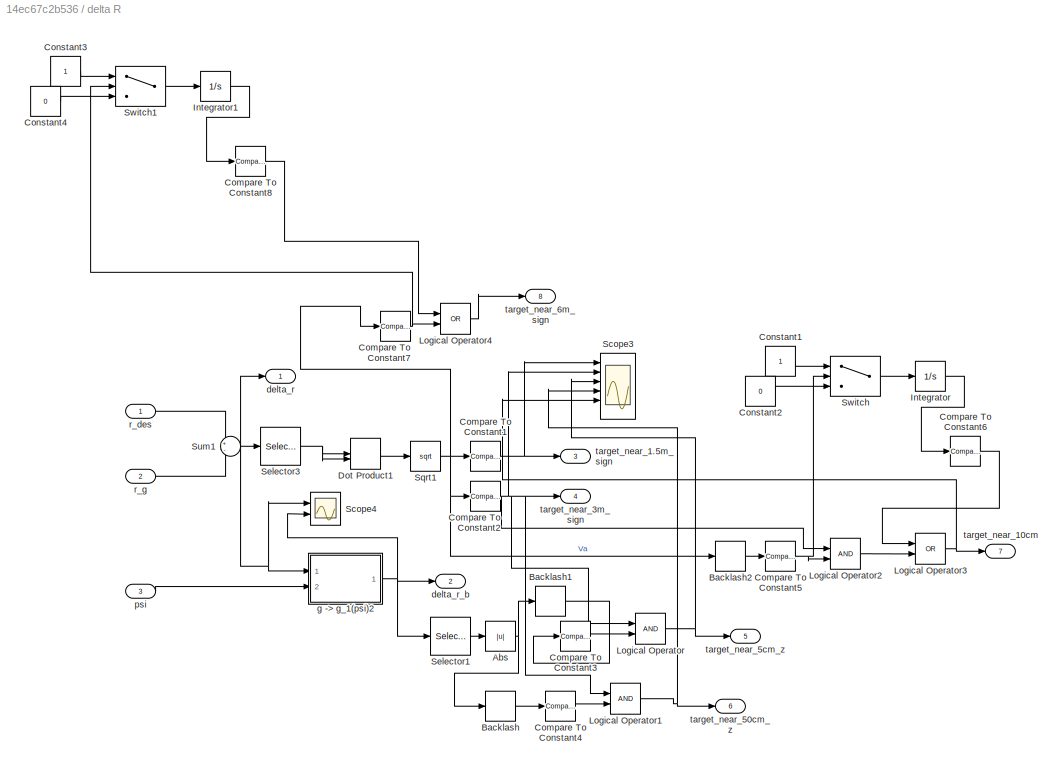
BLOCK [SubSystem] delta R
  Commented = on
  Ports = [3, 8]
  RequestExecContextInheritance = off
  TreatAsAtomicUnit = on
BLOCK [Abs] delta R/Abs
  SaturateOnIntegerOverflow = off
BLOCK [Backlash] delta R/Backlash
  InitialOutput = 2
BLOCK [Backlash] delta R/Backlash1
  BacklashWidth = 0.1
  InitialOutput = 0.2
BLOCK [Backlash] delta R/Backlash2
  BacklashWidth = 0.1
  InitialOutput = 0.4
BLOCK [Reference] delta R/Compare To Constant1  REF=simulink/Logic and Bit
Operations/Compare
To Constant
  Ports = [1, 1]
  SourceBlock = simulink/Logic and Bit\nOperations/Compare\nTo Constant
  SourceProductBaseCode = SL
  SourceType = Compare To Constant
BLOCK [Reference] delta R/Compare To Constant2  REF=simulink/Logic and Bit
Operations/Compare
To Constant
  Ports = [1, 1]
  SourceBlock = simulink/Logic and Bit\nOperations/Compare\nTo Constant
  SourceProductBaseCode = SL
  SourceType = Compare To Constant
BLOCK [Reference] delta R/Compare To Constant3  REF=simulink/Logic and Bit
Operations/Compare
To Constant
  Ports = [1, 1]
  SourceBlock = simulink/Logic and Bit\nOperations/Compare\nTo Constant
  SourceProductBaseCode = SL
  SourceType = Compare To Constant
BLOCK [Reference] delta R/Compare To Constant4  REF=simulink/Logic and Bit
Operations/Compare
To Constant
  Ports = [1, 1]
  SourceBlock = simulink/Logic and Bit\nOperations/Compare\nTo Constant
  SourceProductBaseCode = SL
  SourceType = Compare To Constant
BLOCK [Reference] delta R/Compare To Constant5  REF=simulink/Logic and Bit
Operations/Compare
To Constant
  Ports = [1, 1]
  SourceBlock = simulink/Logic and Bit\nOperations/Compare\nTo Constant
  SourceProductBaseCode = SL
  SourceType = Compare To Constant
BLOCK [Reference] delta R/Compare To Constant6  REF=simulink/Logic and Bit
Operations/Compare
To Constant
  Ports = [1, 1]
  SourceBlock = simulink/Logic and Bit\nOperations/Compare\nTo Constant
  SourceProductBaseCode = SL
  SourceType = Compare To Constant
BLOCK [Reference] delta R/Compare To Constant7  REF=simulink/Logic and Bit
Operations/Compare
To Constant
  Ports = [1, 1]
  SourceBlock = simulink/Logic and Bit\nOperations/Compare\nTo Constant
  SourceProductBaseCode = SL
  SourceType = Compare To Constant
BLOCK [Reference] delta R/Compare To Constant8  REF=simulink/Logic and Bit
Operations/Compare
To Constant
  Ports = [1, 1]
  SourceBlock = simulink/Logic and Bit\nOperations/Compare\nTo Constant
  SourceProductBaseCode = SL
  SourceType = Compare To Constant
BLOCK [Constant] delta R/Constant1
BLOCK [Constant] delta R/Constant2
  Value = 0
BLOCK [Constant] delta R/Constant3
BLOCK [Constant] delta R/Constant4
  Value = 0
BLOCK [DotProduct] delta R/Dot Product1
  OutDataTypeStr = Inherit: Inherit via internal rule
BLOCK [Integrator] delta R/Integrator
  Ports = [1, 1]
BLOCK [Integrator] delta R/Integrator1
  Ports = [1, 1]
BLOCK [Logic] delta R/Logical Operator
  AllPortsSameDT = off
  OutDataTypeStr = boolean
  Ports = [2, 1]
BLOCK [Logic] delta R/Logical Operator1
  AllPortsSameDT = off
  OutDataTypeStr = boolean
  Ports = [2, 1]
BLOCK [Logic] delta R/Logical Operator2
  AllPortsSameDT = off
  OutDataTypeStr = boolean
  Ports = [2, 1]
BLOCK [Logic] delta R/Logical Operator3
  AllPortsSameDT = off
  Operator = OR
  OutDataTypeStr = boolean
  Ports = [2, 1]
BLOCK [Logic] delta R/Logical Operator4
  AllPortsSameDT = off
  Operator = OR
  OutDataTypeStr = boolean
  Ports = [2, 1]
BLOCK [Scope] delta R/Scope3
  Floating = off
  NumInputPorts = 6
  Ports = [6]
  ScopeSpecificationString = Simulink.scopes.TimeScopeBlockCfg('CurrentConfiguration', extmgr.ConfigurationSet(extmgr.Configuration('Core','General UI',true),extmgr.Configuration('Core','Source UI',true),extmgr.Configuration('Sources','WiredSimulink',true,'DataLoggingVariableName','ScopeData2'),extmgr.Configuration('Visuals','Time Domain',true,'SerializedDisplays',{struct('MinYLimReal','-0.125','MaxYLimReal','1.125','YLabelRe...<+1670ch>
BLOCK [Scope] delta R/Scope4
  Floating = off
  NumInputPorts = 2
  Ports = [2]
  ScopeSpecificationString = Simulink.scopes.TimeScopeBlockCfg('CurrentConfiguration', extmgr.ConfigurationSet(extmgr.Configuration('Core','General UI',true),extmgr.Configuration('Core','Source UI',true),extmgr.Configuration('Sources','WiredSimulink',true,'DataLoggingVariableName','ScopeData1'),extmgr.Configuration('Visuals','Time Domain',true,'SerializedDisplays',{struct('MinYLimReal','0.07905','MaxYLimReal','0.22963','YLabe...<+1570ch>
BLOCK [Selector] delta R/Selector1
  IndexOptions = Index vector (dialog)
  Indices = [3]
  InputPortWidth = 3
  OutputSizes = 1
  Ports = [1, 1]
BLOCK [Selector] delta R/Selector3
  IndexOptions = Index vector (dialog)
  Indices = [1 3]
  InputPortWidth = 3
  OutputSizes = 1
  Ports = [1, 1]
BLOCK [Sqrt] delta R/Sqrt1
BLOCK [Sum] delta R/Sum1
  Inputs = +-
  Ports = [2, 1]
BLOCK [Switch] delta R/Switch
  Criteria = u2 ~= 0
  InputSameDT = off
  SaturateOnIntegerOverflow = off
BLOCK [Switch] delta R/Switch1
  Criteria = u2 ~= 0
  InputSameDT = off
  SaturateOnIntegerOverflow = off
BLOCK [Outport] delta R/delta_r
BLOCK [Outport] delta R/delta_r_b
  Port = 2
BLOCK [SubSystem] delta R/g -> g_1(psi)2
  ErrorFcn = Stateflow.Translate.translate
  PermitHierarchicalResolution = ExplicitOnly
  Ports = [2, 1]
  RequestExecContextInheritance = off
  SFBlockType = MATLAB Function
  TreatAsAtomicUnit = on
BLOCK [Demux] delta R/g -> g_1(psi)2/ Demux 
  Outputs = 1
  Ports = [1, 1]
BLOCK [S-Function] delta R/g -> g_1(psi)2/ SFunction 
  EnableBusSupport = on
  FunctionName = sf_sfun
  PortCounts = [2 2]
  Ports = [2, 2]
  SFcnIsStateOwnerBlock = off
  SFunctionDeploymentMode = off
  Tag = Stateflow S-Function 4
BLOCK [Terminator] delta R/g -> g_1(psi)2/ Terminator 
BLOCK [Outport] delta R/g -> g_1(psi)2/g1_vec
BLOCK [Inport] delta R/g -> g_1(psi)2/g_vec
BLOCK [Inport] delta R/g -> g_1(psi)2/psi
  Port = 2
BLOCK [Inport] delta R/psi
  Port = 3
BLOCK [Inport] delta R/r_des
BLOCK [Inport] delta R/r_g
  Port = 2
BLOCK [Outport] delta R/target_near_1.5m_sign
  Port = 3
BLOCK [Outport] delta R/target_near_10cm
  Port = 7
BLOCK [Outport] delta R/target_near_3m_sign
  Port = 4
BLOCK [Outport] delta R/target_near_50cm_z
  Port = 6
BLOCK [Outport] delta R/target_near_5cm_z
  Port = 5
BLOCK [Outport] delta R/target_near_6m_sign
  Port = 8
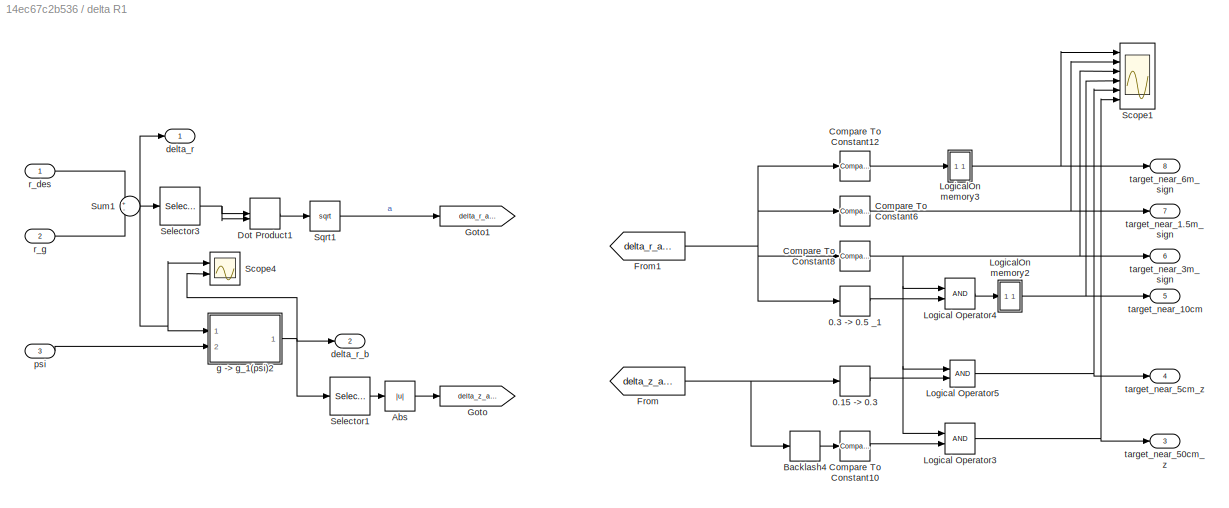
BLOCK [SubSystem] delta R1
  Ports = [3, 8]
  RequestExecContextInheritance = off
  TreatAsAtomicUnit = on
BLOCK [Relay] delta R1/0.15 -> 0.3
  OffOutputValue = 1
  OffSwitchValue = 0.15
  OnOutputValue = 0
  OnSwitchValue = 0.3
BLOCK [Relay] delta R1/0.3 -> 0.5 _1
  OffOutputValue = 1
  OffSwitchValue = 0.3
  OnOutputValue = 0
  OnSwitchValue = 0.5
BLOCK [Abs] delta R1/Abs
  SaturateOnIntegerOverflow = off
BLOCK [Backlash] delta R1/Backlash4
  InitialOutput = 2
BLOCK [Reference] delta R1/Compare To Constant10  REF=simulink/Logic and Bit
Operations/Compare
To Constant
  Ports = [1, 1]
  SourceBlock = simulink/Logic and Bit\nOperations/Compare\nTo Constant
  SourceProductBaseCode = SL
  SourceType = Compare To Constant
BLOCK [Reference] delta R1/Compare To Constant12  REF=simulink/Logic and Bit
Operations/Compare
To Constant
  Ports = [1, 1]
  SourceBlock = simulink/Logic and Bit\nOperations/Compare\nTo Constant
  SourceProductBaseCode = SL
  SourceType = Compare To Constant
BLOCK [Reference] delta R1/Compare To Constant6  REF=simulink/Logic and Bit
Operations/Compare
To Constant
  Ports = [1, 1]
  SourceBlock = simulink/Logic and Bit\nOperations/Compare\nTo Constant
  SourceProductBaseCode = SL
  SourceType = Compare To Constant
BLOCK [Reference] delta R1/Compare To Constant8  REF=simulink/Logic and Bit
Operations/Compare
To Constant
  Ports = [1, 1]
  SourceBlock = simulink/Logic and Bit\nOperations/Compare\nTo Constant
  SourceProductBaseCode = SL
  SourceType = Compare To Constant
BLOCK [DotProduct] delta R1/Dot Product1
  OutDataTypeStr = Inherit: Inherit via internal rule
BLOCK [From] delta R1/From
  GotoTag = delta_z_abs
BLOCK [From] delta R1/From1
  GotoTag = delta_r_abs
BLOCK [Goto] delta R1/Goto
  GotoTag = delta_z_abs
BLOCK [Goto] delta R1/Goto1
  GotoTag = delta_r_abs
BLOCK [Logic] delta R1/Logical Operator3
  AllPortsSameDT = off
  OutDataTypeStr = boolean
  Ports = [2, 1]
BLOCK [Logic] delta R1/Logical Operator4
  AllPortsSameDT = off
  OutDataTypeStr = boolean
  Ports = [2, 1]
BLOCK [Logic] delta R1/Logical Operator5
  AllPortsSameDT = off
  OutDataTypeStr = boolean
  Ports = [2, 1]
BLOCK [SubSystem] delta R1/LogicalOn memory2
  Ports = [1, 1]
  RTWFcnNameOpts = Use subsystem name
  RTWFileNameOpts = Use function name
  RTWSystemCode = Reusable function
  RequestExecContextInheritance = off
  TreatAsAtomicUnit = on
BLOCK [Reference] delta R1/LogicalOn memory2/Compare To Constant6  REF=simulink/Logic and Bit
Operations/Compare
To Constant
  Ports = [1, 1]
  SourceBlock = simulink/Logic and Bit\nOperations/Compare\nTo Constant
  SourceProductBaseCode = SL
  SourceType = Compare To Constant
BLOCK [Constant] delta R1/LogicalOn memory2/Constant1
BLOCK [Constant] delta R1/LogicalOn memory2/Constant2
  Value = 0
BLOCK [Inport] delta R1/LogicalOn memory2/In1
BLOCK [Integrator] delta R1/LogicalOn memory2/Integrator
  Ports = [1, 1]
BLOCK [Integrator] delta R1/LogicalOn memory2/Integrator1
  Ports = [1, 1]
BLOCK [Logic] delta R1/LogicalOn memory2/Logical Operator3
  AllPortsSameDT = off
  Operator = OR
  OutDataTypeStr = boolean
  Ports = [2, 1]
BLOCK [Switch] delta R1/LogicalOn memory2/Switch
  Criteria = u2 ~= 0
  InputSameDT = off
  SaturateOnIntegerOverflow = off
BLOCK [Outport] delta R1/LogicalOn memory2/target_near_10cm1
BLOCK [SubSystem] delta R1/LogicalOn memory3
  Ports = [1, 1]
  RTWFcnNameOpts = Use subsystem name
  RTWFileNameOpts = Use function name
  RTWSystemCode = Reusable function
  RequestExecContextInheritance = off
  TreatAsAtomicUnit = on
BLOCK [Reference] delta R1/LogicalOn memory3/Compare To Constant6  REF=simulink/Logic and Bit
Operations/Compare
To Constant
  Ports = [1, 1]
  SourceBlock = simulink/Logic and Bit\nOperations/Compare\nTo Constant
  SourceProductBaseCode = SL
  SourceType = Compare To Constant
BLOCK [Constant] delta R1/LogicalOn memory3/Constant1
BLOCK [Constant] delta R1/LogicalOn memory3/Constant2
  Value = 0
BLOCK [Inport] delta R1/LogicalOn memory3/In1
BLOCK [Integrator] delta R1/LogicalOn memory3/Integrator
  Ports = [1, 1]
BLOCK [Integrator] delta R1/LogicalOn memory3/Integrator1
  Ports = [1, 1]
BLOCK [Logic] delta R1/LogicalOn memory3/Logical Operator3
  AllPortsSameDT = off
  Operator = OR
  OutDataTypeStr = boolean
  Ports = [2, 1]
BLOCK [Switch] delta R1/LogicalOn memory3/Switch
  Criteria = u2 ~= 0
  InputSameDT = off
  SaturateOnIntegerOverflow = off
BLOCK [Outport] delta R1/LogicalOn memory3/target_near_6m_sign
BLOCK [Scope] delta R1/Scope1
  Floating = off
  NumInputPorts = 6
  Ports = [6]
  ScopeSpecificationString = Simulink.scopes.TimeScopeBlockCfg('CurrentConfiguration', extmgr.ConfigurationSet(extmgr.Configuration('Core','General UI',true),extmgr.Configuration('Core','Source UI',true),extmgr.Configuration('Sources','WiredSimulink',true,'DataLoggingVariableName','ScopeData1'),extmgr.Configuration('Visuals','Time Domain',true,'SerializedDisplays',{struct('MinYLimReal','-0.125','MaxYLimReal','1.125','YLabelRe...<+1679ch>
BLOCK [Scope] delta R1/Scope4
  Floating = off
  NumInputPorts = 2
  Ports = [2]
  ScopeSpecificationString = Simulink.scopes.TimeScopeBlockCfg('CurrentConfiguration', extmgr.ConfigurationSet(extmgr.Configuration('Core','General UI',true),extmgr.Configuration('Core','Source UI',true),extmgr.Configuration('Sources','WiredSimulink',true,'DataLoggingVariableName','ScopeData1'),extmgr.Configuration('Visuals','Time Domain',true,'SerializedDisplays',{struct('MinYLimReal','0.0544','MaxYLimReal','0.21749','YLabel...<+1644ch>
BLOCK [Selector] delta R1/Selector1
  IndexOptions = Index vector (dialog)
  Indices = [3]
  InputPortWidth = 3
  OutputSizes = 1
  Ports = [1, 1]
BLOCK [Selector] delta R1/Selector3
  IndexOptions = Index vector (dialog)
  Indices = [1 3]
  InputPortWidth = 3
  OutputSizes = 1
  Ports = [1, 1]
BLOCK [Sqrt] delta R1/Sqrt1
BLOCK [Sum] delta R1/Sum1
  Inputs = +-
  Ports = [2, 1]
BLOCK [Outport] delta R1/delta_r
BLOCK [Outport] delta R1/delta_r_b
  Port = 2
BLOCK [SubSystem] delta R1/g -> g_1(psi)2
  ErrorFcn = Stateflow.Translate.translate
  PermitHierarchicalResolution = ExplicitOnly
  Ports = [2, 1]
  RequestExecContextInheritance = off
  SFBlockType = MATLAB Function
  TreatAsAtomicUnit = on
BLOCK [Demux] delta R1/g -> g_1(psi)2/ Demux 
  Outputs = 1
  Ports = [1, 1]
BLOCK [S-Function] delta R1/g -> g_1(psi)2/ SFunction 
  EnableBusSupport = on
  FunctionName = sf_sfun
  PortCounts = [2 2]
  Ports = [2, 2]
  SFcnIsStateOwnerBlock = off
  SFunctionDeploymentMode = off
  Tag = Stateflow S-Function 5
BLOCK [Terminator] delta R1/g -> g_1(psi)2/ Terminator 
BLOCK [Outport] delta R1/g -> g_1(psi)2/g1_vec
BLOCK [Inport] delta R1/g -> g_1(psi)2/g_vec
BLOCK [Inport] delta R1/g -> g_1(psi)2/psi
  Port = 2
BLOCK [Inport] delta R1/psi
  Port = 3
BLOCK [Inport] delta R1/r_des
BLOCK [Inport] delta R1/r_g
  Port = 2
BLOCK [Outport] delta R1/target_near_1.5m_sign
  Port = 7
BLOCK [Outport] delta R1/target_near_10cm
  Port = 5
BLOCK [Outport] delta R1/target_near_3m_sign
  Port = 6
BLOCK [Outport] delta R1/target_near_50cm_z
  Port = 3
BLOCK [Outport] delta R1/target_near_5cm_z
  Port = 4
BLOCK [Outport] delta R1/target_near_6m_sign
  Port = 8
BLOCK [Inport] desired
  Port = 2
  PortDimensions = [3, 3]
BLOCK [SubSystem] g -> g_1(psi)
  ErrorFcn = Stateflow.Translate.translate
  PermitHierarchicalResolution = ExplicitOnly
  Ports = [2, 1]
  RequestExecContextInheritance = off
  SFBlockType = MATLAB Function
  TreatAsAtomicUnit = on
BLOCK [Demux] g -> g_1(psi)/ Demux 
  Outputs = 1
  Ports = [1, 1]
BLOCK [S-Function] g -> g_1(psi)/ SFunction 
  EnableBusSupport = on
  FunctionName = sf_sfun
  PortCounts = [2 2]
  Ports = [2, 2]
  SFcnIsStateOwnerBlock = off
  SFunctionDeploymentMode = off
  Tag = Stateflow S-Function 1
BLOCK [Terminator] g -> g_1(psi)/ Terminator 
BLOCK [Outport] g -> g_1(psi)/g1_vec
BLOCK [Inport] g -> g_1(psi)/g_vec
BLOCK [Inport] g -> g_1(psi)/psi
  Port = 2
BLOCK [SubSystem] g -> g_1(psi)1
  ErrorFcn = Stateflow.Translate.translate
  PermitHierarchicalResolution = ExplicitOnly
  Ports = [2, 1]
  RequestExecContextInheritance = off
  SFBlockType = MATLAB Function
  TreatAsAtomicUnit = on
BLOCK [Demux] g -> g_1(psi)1/ Demux 
  Outputs = 1
  Ports = [1, 1]
BLOCK [S-Function] g -> g_1(psi)1/ SFunction 
  EnableBusSupport = on
  FunctionName = sf_sfun
  PortCounts = [2 2]
  Ports = [2, 2]
  SFcnIsStateOwnerBlock = off
  SFunctionDeploymentMode = off
  Tag = Stateflow S-Function 2
BLOCK [Terminator] g -> g_1(psi)1/ Terminator 
BLOCK [Outport] g -> g_1(psi)1/g1_vec
BLOCK [Inport] g -> g_1(psi)1/g_vec
BLOCK [Inport] g -> g_1(psi)1/psi
  Port = 2
BLOCK [SubSystem] g -> g_1(psi)2
  ErrorFcn = Stateflow.Translate.translate
  PermitHierarchicalResolution = ExplicitOnly
  Ports = [2, 1]
  RequestExecContextInheritance = off
  SFBlockType = MATLAB Function
  TreatAsAtomicUnit = on
BLOCK [Demux] g -> g_1(psi)2/ Demux 
  Outputs = 1
  Ports = [1, 1]
BLOCK [S-Function] g -> g_1(psi)2/ SFunction 
  EnableBusSupport = on
  FunctionName = sf_sfun
  PortCounts = [2 2]
  Ports = [2, 2]
  SFcnIsStateOwnerBlock = off
  SFunctionDeploymentMode = off
  Tag = Stateflow S-Function 3
BLOCK [Terminator] g -> g_1(psi)2/ Terminator 
BLOCK [Outport] g -> g_1(psi)2/g1_vec
BLOCK [Inport] g -> g_1(psi)2/g_vec
BLOCK [Inport] g -> g_1(psi)2/psi
  Port = 2
BLOCK [Inport] state
BLOCK [Inport] state_real
  Port = 3
BLOCK [Outport] telemetry
  Port = 2
BLOCK [Outport] u
BLOCK [ModelReference] xz_coordinate_stab
  ModelNameDialog = xz_coordinate_stab_control.slx
  ModelReferenceVersion = 1.10
  Ports = [8, 2]
BLOCK [ModelReference] zx_low_speed (удерживает позицию на ветру)
  ModelNameDialog = xz_low_speed_control.slx
  ModelReferenceVersion = 1.12
  Ports = [6, 2]
BLOCK [SubSystem] Высота, Y
  PortSchema = {"entries":[{"content":{"sides":[{"content":{"connectorIds":[]},"type":"ConnectorPlacement.EquallySpacedRectSide","uuid":"a258f665-a86a-4482-bd07-3187ea478656"},{"content":{"connectorIds":[],"side":"RIGHT"},"type":"ConnectorPlacement.EquallySpacedRectSide","uuid":"4cc1ffc1-e5d7-4190-ba75-89ce977e4acc"},{"content":{"connectorIds":["Out1"],"side":"TOP"},"type":"ConnectorPlacement.EquallySpacedRectSi...<+398ch>
  Ports = [3, 1]
  RequestExecContextInheritance = off
BLOCK [Saturate] Высота, Y/-1 .. 1
  LowerLimit = -1
  UpperLimit = 1
BLOCK [Reference] Высота, Y/Check Step Response Characteristics1  REF=checkpacklib/Check Step Response 
Characteristics
  Commented = on
  InstantiateOnLoad = on
  Ports = [1]
  SourceBlock = checkpacklib/Check Step Response \nCharacteristics
  SourceProductBaseCode = CT,ID,MT,SO
  SourceType = Checks_StepResponse
BLOCK [Gain] Высота, Y/D1
  Gain = D1_podbor_y
BLOCK [From] Высота, Y/From
  GotoTag = y_flush_integrator
BLOCK [Gain] Высота, Y/Gain
  Gain = -1
  NameLocation = right
BLOCK [Gain] Высота, Y/I1
  Gain = I1_podbor_y
BLOCK [Integrator] Высота, Y/Integrator
  ExternalReset = either
  Ports = [2, 1]
BLOCK [Gain] Высота, Y/P1
  Gain = P1_podbor_y
BLOCK [Gain] Высота, Y/P2
  Commented = on
  Gain = 1/3
BLOCK [Saturate] Высота, Y/Saturation
  LowerLimit = 0
  UpperLimit = 4*(MAV.Motor.Nmax*0.5)^2
BLOCK [Scope] Высота, Y/Scope1
  Floating = off
  NumInputPorts = 1
  Ports = [1]
  ScopeSpecificationString = Simulink.scopes.TimeScopeBlockCfg('CurrentConfiguration', extmgr.ConfigurationSet(extmgr.Configuration('Core','General UI',true),extmgr.Configuration('Core','Source UI',true),extmgr.Configuration('Sources','WiredSimulink',true,'DataLoggingVariableName','ScopeData1'),extmgr.Configuration('Visuals','Time Domain',true,'SerializedDisplays',{struct('MinYLimReal','-144.23925','MaxYLimReal','411.6224','Y...<+1442ch>  <repeated x3 — deduplicated; at blocks: Scope1>
BLOCK [Step] Высота, Y/Step
  Before = 9.81
  SampleTime = 0
  Time = 3
BLOCK [Sum] Высота, Y/Sum
  Inputs = |+-
  Ports = [2, 1]
BLOCK [Sum] Высота, Y/Sum1
  Inputs = ++-
  Ports = [3, 1]
BLOCK [Sum] Высота, Y/Sum2
  Inputs = ++|
  Ports = [2, 1]
BLOCK [Sum] Высота, Y/Sum3
  Inputs = |+-
  Ports = [2, 1]
BLOCK [Sum] Высота, Y/Sum5
  Inputs = ++|
  Ports = [2, 1]
BLOCK [GotoTagVisibility] Высота, Y/Tag Visibility
  GotoTag = y_flush_integrator
BLOCK [Constant] Высота, Y/g
  NameLocation = left
  Value = MAV.gravity
BLOCK [Gain] Высота, Y/m//K_f
  Gain = MAV.mass/MAV.Prop.K_f
BLOCK [Outport] Высота, Y/u_T
BLOCK [Inport] Высота, Y/v_g_y
BLOCK [Inport] Высота, Y/y
  Port = 3
BLOCK [Inport] Высота, Y/y_desired
  Port = 2
BLOCK [SubSystem] Высота, Y1
  PortSchema = {"entries":[{"content":{"sides":[{"content":{"connectorIds":[]},"type":"ConnectorPlacement.EquallySpacedRectSide","uuid":"a258f665-a86a-4482-bd07-3187ea478656"},{"content":{"connectorIds":[],"side":"RIGHT"},"type":"ConnectorPlacement.EquallySpacedRectSide","uuid":"4cc1ffc1-e5d7-4190-ba75-89ce977e4acc"},{"content":{"connectorIds":["Out1"],"side":"TOP"},"type":"ConnectorPlacement.EquallySpacedRectSi...<+404ch>
  Ports = [4, 1]
  RequestExecContextInheritance = off
BLOCK [Saturate] Высота, Y1/-1 .. 1
  LowerLimit = -1
  UpperLimit = 1
BLOCK [Gain] Высота, Y1/D1
  Gain = D1_podbor_y
BLOCK [From] Высота, Y1/From
  GotoTag = y_flush_integrator
BLOCK [Gain] Высота, Y1/Gain
  Gain = -1
  NameLocation = right
BLOCK [Gain] Высота, Y1/I1
  Gain = I1_podbor_y
BLOCK [Integrator] Высота, Y1/Integrator
  ExternalReset = either
  Ports = [2, 1]
BLOCK [Gain] Высота, Y1/P1
  Gain = P1_podbor_y
BLOCK [Scope] Высота, Y1/Scope1
  Floating = off
  NumInputPorts = 1
  Ports = [1]
BLOCK [Sum] Высота, Y1/Sum
  Inputs = |+-
  Ports = [2, 1]
BLOCK [Sum] Высота, Y1/Sum1
  Inputs = ++-
  Ports = [3, 1]
BLOCK [Sum] Высота, Y1/Sum2
  Inputs = ++|
  Ports = [2, 1]
BLOCK [Sum] Высота, Y1/Sum3
  Inputs = |+-
  Ports = [2, 1]
BLOCK [GotoTagVisibility] Высота, Y1/Tag Visibility
  GotoTag = y_flush_integrator
BLOCK [Constant] Высота, Y1/g
  NameLocation = left
  Value = MAV.gravity
BLOCK [Gain] Высота, Y1/m//K_f
  Gain = MAV.mass/MAV.Prop.K_f
BLOCK [Saturate] Высота, Y1/min//max thrust
  LowerLimit = 0
  UpperLimit = 4*(MAV.Motor.Nmax*0.5)^2
BLOCK [Outport] Высота, Y1/u_T
BLOCK [Inport] Высота, Y1/v_g_y
BLOCK [Inport] Высота, Y1/v_y_desired
  Port = 4
BLOCK [Inport] Высота, Y1/y
  Port = 3
BLOCK [Inport] Высота, Y1/y_desired
  Port = 2
BLOCK [SubSystem] Скорость по Y
  PortSchema = {"entries":[{"content":{"sides":[{"content":{"connectorIds":[]},"type":"ConnectorPlacement.EquallySpacedRectSide","uuid":"a258f665-a86a-4482-bd07-3187ea478656"},{"content":{"connectorIds":[],"side":"RIGHT"},"type":"ConnectorPlacement.EquallySpacedRectSide","uuid":"4cc1ffc1-e5d7-4190-ba75-89ce977e4acc"},{"content":{"connectorIds":["Out2"],"side":"TOP"},"type":"ConnectorPlacement.EquallySpacedRectSi...<+399ch>
  Ports = [2, 2]
  RequestExecContextInheritance = off
BLOCK [Saturate] Скорость по Y/-1 .. 1
  LowerLimit = -1
  UpperLimit = 1
BLOCK [Outport] Скорость по Y/Out1
BLOCK [Gain] Скорость по Y/P
  Gain = 97.9
BLOCK [Saturate] Скорость по Y/Saturation
  LowerLimit = 0
  UpperLimit = 4*(MAV.Motor.Nmax*0.5)^2
BLOCK [Scope] Скорость по Y/Scope1
  Floating = off
  NumInputPorts = 1
  Ports = [1]
BLOCK [Sum] Скорость по Y/Sum
  Inputs = |+-
  Ports = [2, 1]
BLOCK [Sum] Скорость по Y/Sum1
  Inputs = ++-
  Ports = [3, 1]
BLOCK [Sum] Скорость по Y/Sum2
  Inputs = ++|
  Ports = [2, 1]
BLOCK [Sum] Скорость по Y/Sum5
  Inputs = ++|
  Ports = [2, 1]
BLOCK [Constant] Скорость по Y/g
  NameLocation = left
  Value = MAV.gravity
BLOCK [Gain] Скорость по Y/m//K_f
  Gain = MAV.mass/MAV.Prop.K_f
BLOCK [Outport] Скорость по Y/u_T
  Port = 2
BLOCK [Inport] Скорость по Y/v_y_des
BLOCK [Inport] Скорость по Y/v_y_g
  Port = 2
LINE Abs1:1 -> Compare To Constant1:1
LINE Abs:1 -> Compare To Constant:1
LINE Atan2:1 -> Mux2:1
NET Atomic Subsystem/+-0.3m:1 -> Atomic Subsystem/Gain:1, Atomic Subsystem/Scope2:1
NET Atomic Subsystem/Derivative:1 -> Atomic Subsystem/Gain1:1, Atomic Subsystem/Scope1:1
LINE Atomic Subsystem/Gain1:1 -> Atomic Subsystem/Sum1:2
LINE Atomic Subsystem/Gain:1 -> Atomic Subsystem/Sum1:1
NET Atomic Subsystem/Sum1:1 -> Atomic Subsystem/Scope:1, Atomic Subsystem/Transfer Fcn:1
NET Atomic Subsystem/Sum:1 -> Atomic Subsystem/+-0.3m:1, Atomic Subsystem/Derivative:1
NET Atomic Subsystem/Transfer Fcn:1 -> Atomic Subsystem/Scope:2, Atomic Subsystem/v_x_des:1
LINE Atomic Subsystem/x_des:1 -> Atomic Subsystem/Sum:1
LINE Atomic Subsystem/x_g:1 -> Atomic Subsystem/Sum:2
LINE Atomic Subsystem1/+-0.3m:1 -> Atomic Subsystem1/Gain:1
NET Atomic Subsystem1/Gain:1 -> Atomic Subsystem1/Scope:1, Atomic Subsystem1/v_z_des:1
LINE Atomic Subsystem1/Sum:1 -> Atomic Subsystem1/+-0.3m:1
LINE Atomic Subsystem1/z_des:1 -> Atomic Subsystem1/Sum:1
LINE Atomic Subsystem1/z_g:1 -> Atomic Subsystem1/Sum:2
LINE Atomic Subsystem2/+-5m1:1 -> Atomic Subsystem2/Product:1
NET Atomic Subsystem2/+-5m:1 -> Atomic Subsystem2/Product:2, Atomic Subsystem2/Scope4:1
LINE Atomic Subsystem2/Constant12:1 -> Atomic Subsystem2/Switch:3
LINE Atomic Subsystem2/Derivative:1 -> Atomic Subsystem2/Gain1:1
NET Atomic Subsystem2/Gain1:1 -> Atomic Subsystem2/Scope1:1, Atomic Subsystem2/Sum1:3
LINE Atomic Subsystem2/Gain2:1 -> Atomic Subsystem2/Sum1:2
NET Atomic Subsystem2/Gain3:1 -> Atomic Subsystem2/Scope2:2, Atomic Subsystem2/Sum1:1
LINE Atomic Subsystem2/Integrator:1 -> Atomic Subsystem2/Gain3:1
LINE Atomic Subsystem2/Product:1 -> Atomic Subsystem2/Gain2:1
NET Atomic Subsystem2/Sum1:1 -> Atomic Subsystem2/Scope:1, Atomic Subsystem2/v_x_des:1
LINE Atomic Subsystem2/Switch:1 -> Atomic Subsystem2/Integrator:1
LINE Atomic Subsystem2/Vx_des:1 -> Atomic Subsystem2/+-5m1:1
NET Atomic Subsystem2/err_x_b:1 -> Atomic Subsystem2/+-5m:1, Atomic Subsystem2/Derivative:1, Atomic Subsystem2/Scope2:1, Atomic Subsystem2/Switch:1
LINE Atomic Subsystem2/target_near_3m:1 -> Atomic Subsystem2/Switch:2
LINE Atomic Subsystem2:1 -> Manual Variant Source12:2
NET Atomic Subsystem3/+-3m:1 -> Atomic Subsystem3/Gain:1, Atomic Subsystem3/Scope2:1
LINE Atomic Subsystem3/Derivative:1 -> Atomic Subsystem3/Gain1:1
NET Atomic Subsystem3/Gain1:1 -> Atomic Subsystem3/Scope1:1, Atomic Subsystem3/Sum1:2
LINE Atomic Subsystem3/Gain:1 -> Atomic Subsystem3/Sum1:1
NET Atomic Subsystem3/Sum1:1 -> Atomic Subsystem3/Scope:1, Atomic Subsystem3/v_z_des:1
NET Atomic Subsystem3/err_z_b:1 -> Atomic Subsystem3/+-3m:1, Atomic Subsystem3/Derivative:1
LINE Atomic Subsystem3:1 -> Model:4
LINE Atomic Subsystem4/Dot Product1:1 -> Atomic Subsystem4/Sqrt1:1
NET Atomic Subsystem4/Selector4:1 -> Atomic Subsystem4/Dot Product1:1, Atomic Subsystem4/Dot Product1:2
LINE Atomic Subsystem4/Sqrt1:1 -> Atomic Subsystem4/V_g_xz:1
LINE Atomic Subsystem4/Vg:1 -> Atomic Subsystem4/Selector4:1
LINE Atomic Subsystem4:1 -> Product1:2
LINE Attitude:1 -> Mux:2
LINE Attitude:2 -> Mux:3
LINE Attitude:3 -> Mux:4
LINE Constant11:1 -> xz_coordinate_stab:7
LINE Constant12:1 -> Mux7:2
LINE Constant13:1 -> Manual Variant Source7:2
LINE Constant14:1 -> Manual Variant Source5:1
LINE Constant15:1 -> Manual Variant Source9:2
LINE Constant17:1 -> Mux2:2
LINE Constant18:1 -> zx_low_speed (удерживает позицию на ветру):2
LINE Constant19:1 -> Switch6:3
NET Constant1:1 -> Mux5:1, Mux5:2
LINE Constant20:1 -> Sum1:2
LINE Constant21:1 -> Switch5:1
LINE Constant22:1 -> Switch6:1
LINE Constant2:1 -> Model1:enable
LINE Constant3:1 -> Mux3:2
LINE Constant4:1 -> Model:enable
LINE Constant5:1 -> Mux4:2
LINE Constant6:1 -> xz_coordinate_stab:1
LINE Constant7:1 -> zx_low_speed (удерживает позицию на ветру):1
LINE Constant8:1 -> Manual Variant Source5:2
LINE Constant9:1 -> Mux4:3
LINE Constant:1 -> Sum:1
NET Convert 2-D to 1-D1:1 -> Demux1:1, Selector:1
LINE Demux1:1 -> Goto16:1
LINE Demux1:2 -> Goto23:1
LINE Demux1:3 -> Goto19:1
LINE Demux1:4 -> Goto25:1
LINE Demux1:5 -> Goto26:1
LINE Demux1:6 -> Goto24:1
LINE Demux1:7 -> Goto20:1
LINE Demux1:8 -> Goto21:1
LINE Demux1:9 -> Goto22:1
LINE Demux2:1 -> Goto34:1
LINE Demux2:3 -> Goto35:1
LINE Demux3:1 -> Goto30:1
LINE Demux4:1 -> Atomic Subsystem2:1
LINE Demux4:3 -> Atomic Subsystem3:1
LINE Demux5:1 -> Memory1:1
LINE Demux:1 -> Goto1:1
LINE Demux:10 -> Goto10:1
LINE Demux:11 -> Goto11:1
LINE Demux:12 -> Goto12:1
LINE Demux:13 -> Goto13:1
LINE Demux:14 -> Goto14:1
LINE Demux:15 -> Goto15:1
LINE Demux:2 -> Goto2:1
LINE Demux:3 -> Goto3:1
LINE Demux:4 -> Goto4:1
LINE Demux:5 -> Goto5:1
LINE Demux:6 -> Goto6:1
LINE Demux:7 -> Goto9:1
LINE Demux:8 -> Goto8:1
LINE Demux:9 -> Goto7:1
LINE Flush integrators commandor/Demux:1 -> Flush integrators commandor/theta:1
LINE Flush integrators commandor/Demux:2 -> Flush integrators commandor/x:1
LINE Flush integrators commandor/Demux:3 -> Flush integrators commandor/y:1
NET Flush integrators commandor/MATLAB Function:1 -> Flush integrators commandor/Demux:1, Flush integrators commandor/Memory:1
LINE Flush integrators commandor/MATLAB Function:2 -> Flush integrators commandor/Memory1:1
LINE Flush integrators commandor/Memory1:1 -> Flush integrators commandor/MATLAB Function:2
LINE Flush integrators commandor/Memory:1 -> Flush integrators commandor/MATLAB Function:3
LINE Flush integrators commandor/mode:1 -> Flush integrators commandor/MATLAB Function:1
LINE Flush integrators commandor:1 -> Goto:1
LINE Flush integrators commandor:2 -> Goto17:1
LINE Flush integrators commandor:3 -> Goto18:1
LINE From100:1 -> delta R1:1
LINE From101:1 -> delta R1:2
LINE From102:1 -> delta R1:3
LINE From103:1 -> Manual Variant Source6:2
LINE From10:1 -> Высота, Y:1
LINE From11:1 -> Flush integrators commandor:1
LINE From12:1 -> Высота, Y:3
LINE From13:1 -> Высота, Y:2
LINE From15:1 -> g -> g_1(psi):2
LINE From16:1 -> Mux3:3
LINE From17:1 -> Mux3:1
LINE From18:1 -> XZ traj:1
LINE From1:1 -> Attitude:9
LINE From20:1 -> Model1:1
LINE From21:1 -> Attitude:7
LINE From22:1 -> PID switcher:1
LINE From23:1 -> Attitude:8
LINE From24:1 -> Attitude:5
LINE From25:1 -> Attitude:4
LINE From26:1 -> Attitude:2
LINE From27:1 -> Attitude:3
LINE From28:1 -> Mux1:3
LINE From29:1 -> Mux1:2
LINE From2:1 -> Model:3
LINE From30:1 -> Mux1:4
LINE From31:1 -> Mux4:1
LINE From32:1 -> Attitude:6
LINE From33:1 -> Attitude:1
LINE From34:1 -> XZ traj:2
LINE From35:1 -> Atan2:2
LINE From36:1 -> Gain:1
LINE From37:1 -> Mux6:1
LINE From38:1 -> Mux6:2
LINE From39:1 -> Model2:1
LINE From3:1 -> Manual Variant Source12:1
LINE From40:1 -> Model2:2
LINE From41:1 -> Model2:4
LINE From43:1 -> zx_low_speed (удерживает позицию на ветру):3
LINE From44:1 -> zx_low_speed (удерживает позицию на ветру):5
LINE From46:1 -> xz_coordinate_stab:4
LINE From47:1 -> Switch2:3
LINE From48:1 -> xz_coordinate_stab:8
LINE From49:1 -> zx_low_speed (удерживает позицию на ветру):6
LINE From4:1 -> g -> g_1(psi)1:2
LINE From50:1 -> Model2:3
LINE From51:1 -> Model1:4
LINE From53:1 -> Atomic Subsystem:2
LINE From54:1 -> Atomic Subsystem1:1
LINE From55:1 -> Atomic Subsystem1:2
LINE From56:1 -> Atomic Subsystem:3
LINE From57:1 -> Скорость по Y:2
LINE From58:1 -> Высота, Y1:1
LINE From59:1 -> Switch:2
LINE From5:1 -> Model:2
LINE From61:1 -> Высота, Y1:3
LINE From62:1 -> Model:5
LINE From63:1 -> XZ traj1:1
LINE From64:1 -> Manual Variant Source8:1
LINE From65:1 -> delta R:1
LINE From66:1 -> delta R:2
LINE From67:1 -> Switch1:2
LINE From68:1 -> delta R:3
LINE From69:1 -> Demux4:1
LINE From6:1 -> xz_coordinate_stab:3
LINE From70:1 -> Sum2:1
LINE From71:1 -> Manual Variant Source8:2
LINE From72:1 -> Manual Variant Source2:2
LINE From73:1 -> XZ traj1:2
LINE From74:1 -> Atomic Subsystem2:3
LINE From76:1 -> Switch2:2
LINE From78:1 -> Switch6:2
LINE From79:1 -> Model1:5
LINE From7:1 -> Selector2:1
LINE From80:1 -> Switch4:2
LINE From81:1 -> Switch4:1
LINE From82:1 -> Switch4:3
LINE From83:1 -> g -> g_1(psi)2:2
LINE From84:1 -> Mux8:1
LINE From85:1 -> Mux8:2
LINE From86:1 -> Mux8:3
LINE From87:1 -> Model2:5
LINE From88:1 -> Sum:2
LINE From89:1 -> Mux9:3
LINE From8:1 -> xz_coordinate_stab:2
NET From90:1 -> Mux9:1, Sign:1
LINE From91:1 -> Mux9:2
NET From92:1 -> Switch3:3, Высота, Y1:2
NET From93:1 -> Switch3:2, Switch5:2
LINE From94:1 -> Switch5:3
LINE From95:1 -> Sum1:1
LINE From96:1 -> Sum2:2
LINE From99:1 -> Abs1:1
LINE From9:1 -> xz_coordinate_stab:5
LINE From:1 -> Model1:3
LINE Gain:1 -> Atan2:1
LINE Manual Variant Source10:1 -> Mux:1
LINE Manual Variant Source11:1 -> Manual Variant Source10:1
LINE Manual Variant Source12:1 -> Model:1
LINE Manual Variant Source13:1 -> Goto28:1
LINE Manual Variant Source1:1 -> Manual Variant Source9:1
LINE Manual Variant Source2:1 -> Goto36:1
LINE Manual Variant Source3:1 -> Goto29:1
LINE Manual Variant Source4:1 -> Manual Variant Source13:2
LINE Manual Variant Source5:1 -> Manual Variant Source4:1
LINE Manual Variant Source6:1 -> Manual Variant Source3:2
LINE Manual Variant Source7:1 -> Manual Variant Source3:1
LINE Manual Variant Source8:1 -> Manual Variant Source6:1
LINE Manual Variant Source9:1 -> Manual Variant Source2:1
LINE Manual Variant Source:1 -> Manual Variant Source7:1
NET Memory1:1 -> Mux7:1, Scope:1
LINE Memory:1 -> Switch:1
LINE Model1:1 -> Goto41:1
NET Model1:2 -> Manual Variant Source13:1, Switch1:3
LINE Model2:1 -> Switch:3
LINE Model2:2 -> Tan:1
LINE Model:1 -> Goto43:1
LINE Model:2 -> Goto42:1
LINE Mux1:1 -> telemetry:1
LINE Mux2:1 -> Manual Variant Source4:2
LINE Mux3:1 -> g -> g_1(psi):1
LINE Mux4:1 -> g -> g_1(psi)1:1
LINE Mux7:1 -> Switch1:1
LINE Mux8:1 -> g -> g_1(psi)2:1
LINE Mux9:1 -> Atomic Subsystem4:1
NET Mux:1 -> Mux1:1, u:1
LINE Product1:1 -> Product:2
NET Product:1 -> Goto46:1, Scope1:1
LINE Selector1:1 -> Goto38:1
LINE Selector2:1 -> xz_coordinate_stab:6
LINE Selector3:1 -> zx_low_speed (удерживает позицию на ветру):4
LINE Selector:1 -> Goto37:1
LINE Sign:1 -> Product1:1
LINE Step1:1 -> Скорость по Y:1
LINE Step2:1 -> Goto33:1
LINE Step3:1 -> Atomic Subsystem2:2
LINE Step:1 -> Atomic Subsystem:1
LINE Sum1:1 -> Switch3:1
LINE Sum2:1 -> Abs:1
LINE Switch5:1 -> Высота, Y1:4
LINE Switch6:1 -> Transfer Fcn:1
NET Tan:1 -> Product:1, Scope2:1
LINE Transfer Fcn:1 -> Model2:6
NET delta R/Abs:1 -> delta R/Backlash1:1, delta R/Backlash:1
LINE delta R/Backlash1:1 -> delta R/Compare To Constant3:1
LINE delta R/Backlash2:1 -> delta R/Compare To Constant5:1
LINE delta R/Backlash:1 -> delta R/Compare To Constant4:1
NET delta R/Compare To Constant1:1 -> delta R/Scope3:1, delta R/target_near_1.5m_sign:1
NET delta R/Compare To Constant2:1 -> delta R/Logical Operator1:1, delta R/Logical Operator2:1, delta R/Logical Operator:1, delta R/Scope3:2, delta R/target_near_3m_sign:1
LINE delta R/Compare To Constant3:1 -> delta R/Logical Operator:2
LINE delta R/Compare To Constant4:1 -> delta R/Logical Operator1:2
NET delta R/Compare To Constant5:1 -> delta R/Logical Operator2:2, delta R/Switch:2
LINE delta R/Compare To Constant6:1 -> delta R/Logical Operator3:1
NET delta R/Compare To Constant7:1 -> delta R/Logical Operator4:2, delta R/Switch1:2
LINE delta R/Compare To Constant8:1 -> delta R/Logical Operator4:1
LINE delta R/Constant1:1 -> delta R/Switch:1
LINE delta R/Constant2:1 -> delta R/Switch:3
LINE delta R/Constant3:1 -> delta R/Switch1:1
LINE delta R/Constant4:1 -> delta R/Switch1:3
LINE delta R/Dot Product1:1 -> delta R/Sqrt1:1
LINE delta R/Integrator1:1 -> delta R/Compare To Constant8:1
LINE delta R/Integrator:1 -> delta R/Compare To Constant6:1
NET delta R/Logical Operator1:1 -> delta R/Scope3:4, delta R/target_near_50cm_z:1
LINE delta R/Logical Operator2:1 -> delta R/Logical Operator3:2
NET delta R/Logical Operator3:1 -> delta R/Scope3:5, delta R/target_near_10cm:1
LINE delta R/Logical Operator4:1 -> delta R/target_near_6m_sign:1
NET delta R/Logical Operator:1 -> delta R/Scope3:3, delta R/target_near_5cm_z:1
LINE delta R/Selector1:1 -> delta R/Abs:1
NET delta R/Selector3:1 -> delta R/Dot Product1:1, delta R/Dot Product1:2
NET delta R/Sqrt1:1 -> delta R/Backlash2:1, delta R/Compare To Constant1:1, delta R/Compare To Constant2:1, delta R/Compare To Constant7:1
NET delta R/Sum1:1 -> delta R/Scope4:1, delta R/Selector3:1, delta R/delta_r:1, delta R/g -> g_1(psi)2:1
LINE delta R/Switch1:1 -> delta R/Integrator1:1
LINE delta R/Switch:1 -> delta R/Integrator:1
NET delta R/g -> g_1(psi)2:1 -> delta R/Scope4:2, delta R/Selector1:1, delta R/delta_r_b:1
LINE delta R/psi:1 -> delta R/g -> g_1(psi)2:2
LINE delta R/r_des:1 -> delta R/Sum1:1
LINE delta R/r_g:1 -> delta R/Sum1:2
LINE delta R1/0.15 -> 0.3:1 -> delta R1/Logical Operator5:2
LINE delta R1/0.3 -> 0.5 _1:1 -> delta R1/Logical Operator4:2
LINE delta R1/Abs:1 -> delta R1/Goto:1
LINE delta R1/Backlash4:1 -> delta R1/Compare To Constant10:1
LINE delta R1/Compare To Constant10:1 -> delta R1/Logical Operator3:2
LINE delta R1/Compare To Constant12:1 -> delta R1/LogicalOn memory3:1
NET delta R1/Compare To Constant6:1 -> delta R1/Scope1:2, delta R1/target_near_1.5m_sign:1
NET delta R1/Compare To Constant8:1 -> delta R1/Logical Operator3:1, delta R1/Logical Operator4:1, delta R1/Logical Operator5:1, delta R1/Scope1:3, delta R1/target_near_3m_sign:1
LINE delta R1/Dot Product1:1 -> delta R1/Sqrt1:1
NET delta R1/From1:1 -> delta R1/0.3 -> 0.5 _1:1, delta R1/Compare To Constant12:1, delta R1/Compare To Constant6:1, delta R1/Compare To Constant8:1
NET delta R1/From:1 -> delta R1/0.15 -> 0.3:1, delta R1/Backlash4:1
NET delta R1/Logical Operator3:1 -> delta R1/Scope1:6, delta R1/target_near_50cm_z:1
LINE delta R1/Logical Operator4:1 -> delta R1/LogicalOn memory2:1
NET delta R1/Logical Operator5:1 -> delta R1/Scope1:5, delta R1/target_near_5cm_z:1
LINE delta R1/LogicalOn memory2/Compare To Constant6:1 -> delta R1/LogicalOn memory2/Logical Operator3:1
LINE delta R1/LogicalOn memory2/Constant1:1 -> delta R1/LogicalOn memory2/Switch:1
LINE delta R1/LogicalOn memory2/Constant2:1 -> delta R1/LogicalOn memory2/Switch:3
NET delta R1/LogicalOn memory2/In1:1 -> delta R1/LogicalOn memory2/Logical Operator3:2, delta R1/LogicalOn memory2/Switch:2
LINE delta R1/LogicalOn memory2/Integrator:1 -> delta R1/LogicalOn memory2/Compare To Constant6:1
LINE delta R1/LogicalOn memory2/Logical Operator3:1 -> delta R1/LogicalOn memory2/target_near_10cm1:1
LINE delta R1/LogicalOn memory2/Switch:1 -> delta R1/LogicalOn memory2/Integrator:1
NET delta R1/LogicalOn memory2:1 -> delta R1/Scope1:4, delta R1/target_near_10cm:1
LINE delta R1/LogicalOn memory3/Compare To Constant6:1 -> delta R1/LogicalOn memory3/Logical Operator3:1
LINE delta R1/LogicalOn memory3/Constant1:1 -> delta R1/LogicalOn memory3/Switch:1
LINE delta R1/LogicalOn memory3/Constant2:1 -> delta R1/LogicalOn memory3/Switch:3
NET delta R1/LogicalOn memory3/In1:1 -> delta R1/LogicalOn memory3/Logical Operator3:2, delta R1/LogicalOn memory3/Switch:2
LINE delta R1/LogicalOn memory3/Integrator:1 -> delta R1/LogicalOn memory3/Compare To Constant6:1
LINE delta R1/LogicalOn memory3/Logical Operator3:1 -> delta R1/LogicalOn memory3/target_near_6m_sign:1
LINE delta R1/LogicalOn memory3/Switch:1 -> delta R1/LogicalOn memory3/Integrator:1
NET delta R1/LogicalOn memory3:1 -> delta R1/Scope1:1, delta R1/target_near_6m_sign:1
LINE delta R1/Selector1:1 -> delta R1/Abs:1
NET delta R1/Selector3:1 -> delta R1/Dot Product1:1, delta R1/Dot Product1:2
LINE delta R1/Sqrt1:1 -> delta R1/Goto1:1
NET delta R1/Sum1:1 -> delta R1/Scope4:1, delta R1/Selector3:1, delta R1/delta_r:1, delta R1/g -> g_1(psi)2:1
NET delta R1/g -> g_1(psi)2:1 -> delta R1/Scope4:2, delta R1/Selector1:1, delta R1/delta_r_b:1
LINE delta R1/psi:1 -> delta R1/g -> g_1(psi)2:2
LINE delta R1/r_des:1 -> delta R1/Sum1:1
LINE delta R1/r_g:1 -> delta R1/Sum1:2
LINE delta R1:2 -> Goto51:1
LINE delta R1:3 -> Goto52:1
LINE delta R1:4 -> Goto49:1
LINE delta R1:5 -> Goto53:1
LINE delta R1:6 -> Goto48:1
LINE delta R1:7 -> Goto50:1
LINE delta R:2 -> Goto40:1
LINE delta R:3 -> Goto39:1
LINE delta R:4 -> Goto27:1
LINE delta R:5 -> Goto32:1
LINE delta R:6 -> Goto44:1
LINE delta R:7 -> Goto47:1
LINE desired:1 -> Convert 2-D to 1-D1:1
LINE g -> g_1(psi)1:1 -> Demux3:1
LINE g -> g_1(psi)2:1 -> Selector3:1
LINE g -> g_1(psi):1 -> Demux2:1
NET state:1 -> Demux:1, Goto31:1, Selector1:1
LINE state_real:1 -> Model1:2
LINE xz_coordinate_stab:1 -> Manual Variant Source1:2
NET xz_coordinate_stab:2 -> Goto45:1, Manual Variant Source:2
LINE zx_low_speed (удерживает позицию на ветру):1 -> Manual Variant Source1:1
LINE zx_low_speed (удерживает позицию на ветру):2 -> Switch2:1
NET Высота, Y/-1 .. 1:1 -> Высота, Y/Integrator:1, Высота, Y/P1:1
LINE Высота, Y/D1:1 -> Высота, Y/Gain:1
LINE Высота, Y/From:1 -> Высота, Y/Integrator:2
LINE Высота, Y/Gain:1 -> Высота, Y/Sum1:3
LINE Высота, Y/I1:1 -> Высота, Y/Sum1:1
LINE Высота, Y/Integrator:1 -> Высота, Y/I1:1
LINE Высота, Y/P1:1 -> Высота, Y/Sum1:2
LINE Высота, Y/P2:1 -> Высота, Y/Check Step Response Characteristics1:1
LINE Высота, Y/Saturation:1 -> Высота, Y/u_T:1
LINE Высота, Y/Sum1:1 -> Высота, Y/Sum2:2
NET Высота, Y/Sum2:1 -> Высота, Y/Scope1:1, Высота, Y/Sum5:2
LINE Высота, Y/Sum3:1 -> Высота, Y/D1:1
LINE Высота, Y/Sum5:1 -> Высота, Y/m//K_f:1
LINE Высота, Y/Sum:1 -> Высота, Y/-1 .. 1:1
LINE Высота, Y/g:1 -> Высота, Y/Sum2:1
LINE Высота, Y/m//K_f:1 -> Высота, Y/Saturation:1
LINE Высота, Y/v_g_y:1 -> Высота, Y/Sum3:2
NET Высота, Y/y:1 -> Высота, Y/P2:1, Высота, Y/Sum:2
LINE Высота, Y/y_desired:1 -> Высота, Y/Sum:1
NET Высота, Y1/-1 .. 1:1 -> Высота, Y1/Integrator:1, Высота, Y1/P1:1
LINE Высота, Y1/D1:1 -> Высота, Y1/Gain:1
LINE Высота, Y1/From:1 -> Высота, Y1/Integrator:2
LINE Высота, Y1/Gain:1 -> Высота, Y1/Sum1:3
LINE Высота, Y1/I1:1 -> Высота, Y1/Sum1:1
LINE Высота, Y1/Integrator:1 -> Высота, Y1/I1:1
LINE Высота, Y1/P1:1 -> Высота, Y1/Sum1:2
LINE Высота, Y1/Sum1:1 -> Высота, Y1/Sum2:2
NET Высота, Y1/Sum2:1 -> Высота, Y1/Scope1:1, Высота, Y1/m//K_f:1
LINE Высота, Y1/Sum3:1 -> Высота, Y1/D1:1
LINE Высота, Y1/Sum:1 -> Высота, Y1/-1 .. 1:1
LINE Высота, Y1/g:1 -> Высота, Y1/Sum2:1
LINE Высота, Y1/m//K_f:1 -> Высота, Y1/min//max thrust:1
LINE Высота, Y1/min//max thrust:1 -> Высота, Y1/u_T:1
LINE Высота, Y1/v_g_y:1 -> Высота, Y1/Sum3:2
LINE Высота, Y1/v_y_desired:1 -> Высота, Y1/Sum3:1
LINE Высота, Y1/y:1 -> Высота, Y1/Sum:2
LINE Высота, Y1/y_desired:1 -> Высота, Y1/Sum:1
LINE Высота, Y1:1 -> Manual Variant Source11:1
LINE Высота, Y:1 -> Manual Variant Source11:2
LINE Скорость по Y/-1 .. 1:1 -> Скорость по Y/P:1
LINE Скорость по Y/P:1 -> Скорость по Y/Sum1:2
LINE Скорость по Y/Saturation:1 -> Скорость по Y/u_T:1
LINE Скорость по Y/Sum1:1 -> Скорость по Y/Sum2:2
NET Скорость по Y/Sum2:1 -> Скорость по Y/Scope1:1, Скорость по Y/Sum5:2
LINE Скорость по Y/Sum5:1 -> Скорость по Y/m//K_f:1
LINE Скорость по Y/Sum:1 -> Скорость по Y/-1 .. 1:1
LINE Скорость по Y/g:1 -> Скорость по Y/Sum2:1
LINE Скорость по Y/m//K_f:1 -> Скорость по Y/Saturation:1
LINE Скорость по Y/v_y_des:1 -> Скорость по Y/Sum:1
LINE Скорость по Y/v_y_g:1 -> Скорость по Y/Sum:2
LINE Скорость по Y:2 -> Manual Variant Source10:2
note: NET lines group one-source signal fan-out (src -> all destinations, sorted); 1:1 wires keep LINE
CHART g -> g_1(psi) states=1 transitions=1
  STATE_LABEL 'eML_blk_kernel()'
  STATE_LABEL 'SCRIPT:\n% Поворот вектора глобальной СК в полусвязанную на угол рыскания\nfunction g1_vec = fcn(g_vec, psi)\n\nc_p = cos(psi); s_p = sin(psi);\nR = [c_p 0 -s_p; 0 1 0; s_p 0 c_p];\ng1_vec = R * g_vec;'  <repeated x5 — deduplicated; at blocks: g -> g_1(psi), g -> g_1(psi)1, g -> g_1(psi)2>
CHART g -> g_1(psi)1 states=1 transitions=1
  STATE_LABEL 'eML_blk_kernel()'
CHART g -> g_1(psi)2 states=1 transitions=1
  STATE_LABEL 'eML_blk_kernel()'
CHART delta R/g -> g_1(psi)2 states=1 transitions=1
  STATE_LABEL 'eML_blk_kernel()'
CHART delta R1/g -> g_1(psi)2 states=1 transitions=1
  STATE_LABEL 'eML_blk_kernel()'
CHART Flush integrators commandor/MATLAB Function states=1 transitions=1
  STATE_LABEL 'eML_blk_kernel()'
  STATE_LABEL 'SCRIPT:\nfunction [command, mode_vec]  = fcn(mode_vec, prev_mode_vec, prev_command)\n    command = prev_command;\n%     persistent prev_mode;\n%     if isempty(prev_mode)\n%        prev_mode = -1; \n%     end\n    if prev_mode_vec == mode_vec\n        return\n    end\n%     prev_mode = mode;\n    % command: [ theta x y]\n    \n    mode = FlightMode(mode_vec);\n    prev_mode = FlightMode(prev_mode_vec);\n    phi ...<+664ch>'
CHART  states=0 transitions=0
CHART  states=0 transitions=0
CHART  states=0 transitions=0
CHART  states=0 transitions=0
CHART  states=0 transitions=0
CHART  states=0 transitions=0
